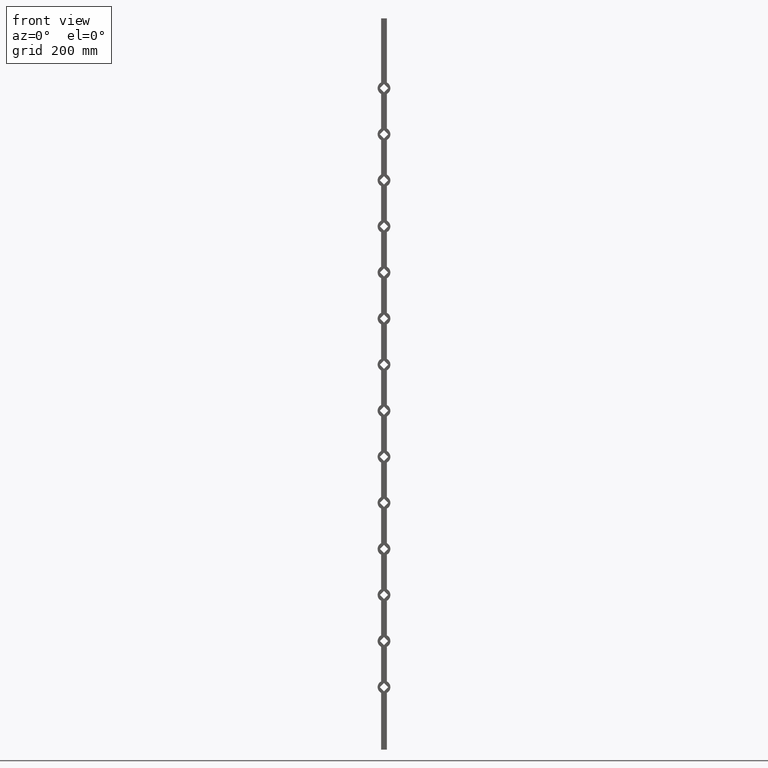
[diagram: clean part render]
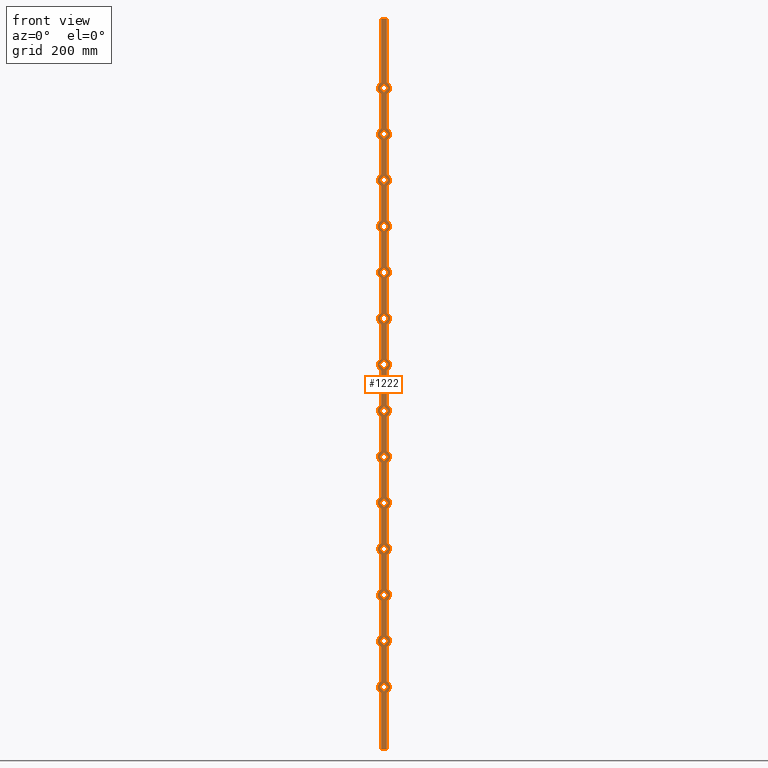
[diagram: same view with one face highlighted and labeled with its STEP entity id]
A machine part, front view. The second image highlights one B-rep face of the part: STEP entity #1222.
In plain terms, the highlighted planar face has unit normal (0, 1, 0).
Its self-contained STEP definition (entity closure, byte-faithful):
#13 = CARTESIAN_POINT ( 'NONE',  ( 11.31370849898475406, -8.000000000000000000, -703.0000000000001137 ) ) ;
#15 = ORIENTED_EDGE ( 'NONE', *, *, #8897, .F. ) ;
#20 = LINE ( 'NONE', #11042, #3275 ) ;
#28 = LINE ( 'NONE', #9667, #5341 ) ;
#30 = CARTESIAN_POINT ( 'NONE',  ( -8.000000000000000000, -8.000000000000000000, 1000.000000000000000 ) ) ;
#32 = CARTESIAN_POINT ( 'NONE',  ( -8.000000000000000000, -8.000000000000000000, -183.4356175837266676 ) ) ;
#36 = CARTESIAN_POINT ( 'NONE',  ( 8.000000000000000000, -8.000000000000000000, 1000.000000000000000 ) ) ;
#61 = DIRECTION ( 'NONE',  ( -0.000000000000000000, -0.000000000000000000, -1.000000000000000000 ) ) ;
#75 = VERTEX_POINT ( 'NONE', #12606 ) ;
#76 = CARTESIAN_POINT ( 'NONE',  ( 1.124574612246848563E-13, -8.000000000000000000, -313.6862915010150346 ) ) ;
#78 = CARTESIAN_POINT ( 'NONE',  ( -7.999999999999960032, -8.000000000000000000, 698.5643824162733608 ) ) ;
#92 = FACE_BOUND ( 'NONE', #8904, .T. ) ;
#94 = CIRCLE ( 'NONE', #10407, 17.50000000000001421 ) ;
#102 = LINE ( 'NONE', #13, #10920 ) ;
#111 = CARTESIAN_POINT ( 'NONE',  ( -7.999999999999960032, -8.000000000000000000, -813.4356175837265255 ) ) ;
#186 = CARTESIAN_POINT ( 'NONE',  ( 8.000000000000000000, -8.000000000000000000, 446.5643824162733040 ) ) ;
#197 = VECTOR ( 'NONE', #3915, 1000.000000000000000 ) ;
#209 = CARTESIAN_POINT ( 'NONE',  ( -8.000000000000000000, -8.000000000000000000, 415.4356175837265255 ) ) ;
#218 = DIRECTION ( 'NONE',  ( 0.000000000000000000, 0.000000000000000000, 1.000000000000000000 ) ) ;
#226 = LINE ( 'NONE', #1295, #2275 ) ;
#231 = LINE ( 'NONE', #10172, #4000 ) ;
#243 = LINE ( 'NONE', #12074, #4366 ) ;
#245 = EDGE_CURVE ( 'NONE', #10849, #9266, #4233, .T. ) ;
#252 = VERTEX_POINT ( 'NONE', #11016 ) ;
#263 = FACE_BOUND ( 'NONE', #14180, .T. ) ;
#266 = CARTESIAN_POINT ( 'NONE',  ( 8.000000000000000000, -8.000000000000000000, 1000.000000000000000 ) ) ;
#316 = VECTOR ( 'NONE', #13889, 1000.000000000000000 ) ;
#318 = VERTEX_POINT ( 'NONE', #8697 ) ;
#323 = CARTESIAN_POINT ( 'NONE',  ( 8.000000000000000000, -8.000000000000000000, 1000.000000000000000 ) ) ;
#332 = VERTEX_POINT ( 'NONE', #12053 ) ;
#353 = CIRCLE ( 'NONE', #13438, 17.50000000000001421 ) ;
#359 = DIRECTION ( 'NONE',  ( -0.000000000000000000, -0.000000000000000000, -1.000000000000000000 ) ) ;
#387 = LINE ( 'NONE', #7797, #11706 ) ;
#402 = CARTESIAN_POINT ( 'NONE',  ( 1.124574612246848563E-13, -8.000000000000000000, 545.6862915010150346 ) ) ;
#431 = FACE_BOUND ( 'NONE', #3463, .T. ) ;
#447 = CIRCLE ( 'NONE', #6473, 17.49999999999996092 ) ;
#464 = EDGE_CURVE ( 'NONE', #12711, #9777, #1128, .T. ) ;
#516 = EDGE_LOOP ( 'NONE', ( #5378, #9468, #900, #1482 ) ) ;
#530 = CIRCLE ( 'NONE', #10386, 17.49999999999996092 ) ;
#535 = CARTESIAN_POINT ( 'NONE',  ( 0.000000000000000000, -8.000000000000000000, 304.9999999999999432 ) ) ;
#576 = VERTEX_POINT ( 'NONE', #5732 ) ;
#589 = EDGE_CURVE ( 'NONE', #7779, #11117, #102, .T. ) ;
#606 = ORIENTED_EDGE ( 'NONE', *, *, #5252, .F. ) ;
#611 = LINE ( 'NONE', #10032, #3004 ) ;
#626 = EDGE_CURVE ( 'NONE', #4599, #7678, #5246, .T. ) ;
#647 = ORIENTED_EDGE ( 'NONE', *, *, #464, .T. ) ;
#650 = DIRECTION ( 'NONE',  ( 0.000000000000000000, 1.000000000000000000, 0.000000000000000000 ) ) ;
#659 = VECTOR ( 'NONE', #2306, 1000.000000000000000 ) ;
#663 = EDGE_CURVE ( 'NONE', #4701, #9791, #1979, .T. ) ;
#702 = EDGE_CURVE ( 'NONE', #11053, #6277, #447, .T. ) ;
#707 = LINE ( 'NONE', #4610, #11523 ) ;
#715 = ORIENTED_EDGE ( 'NONE', *, *, #2684, .T. ) ;
#716 = CARTESIAN_POINT ( 'NONE',  ( 1.124574612246848563E-13, -8.000000000000000000, 41.68629150101499192 ) ) ;
#723 = CARTESIAN_POINT ( 'NONE',  ( 1.124574612246848563E-13, -8.000000000000000000, 190.3137084989848802 ) ) ;
#727 = DIRECTION ( 'NONE',  ( -0.7071067811865450192, -0.000000000000000000, 0.7071067811865500152 ) ) ;
#746 = CIRCLE ( 'NONE', #4199, 17.50000000000001421 ) ;
#769 = VECTOR ( 'NONE', #8534, 1000.000000000000000 ) ;
#770 = ORIENTED_EDGE ( 'NONE', *, *, #1193, .T. ) ;
#773 = LINE ( 'NONE', #7754, #10584 ) ;
#786 = EDGE_CURVE ( 'NONE', #12048, #576, #1822, .T. ) ;
#789 = AXIS2_PLACEMENT_3D ( 'NONE', #7365, #8431, #801 ) ;
#801 = DIRECTION ( 'NONE',  ( 0.000000000000000000, -0.000000000000000000, 1.000000000000000000 ) ) ;
#833 = ORIENTED_EDGE ( 'NONE', *, *, #6901, .F. ) ;
#846 = EDGE_CURVE ( 'NONE', #9791, #1005, #13464, .T. ) ;
#851 = DIRECTION ( 'NONE',  ( -0.7071067811865381358, -0.000000000000000000, -0.7071067811865570096 ) ) ;
#864 = CARTESIAN_POINT ( 'NONE',  ( 0.000000000000000000, -8.000000000000000000, 52.99999999999993605 ) ) ;
#872 = AXIS2_PLACEMENT_3D ( 'NONE', #13310, #7814, #9024 ) ;
#900 = ORIENTED_EDGE ( 'NONE', *, *, #13009, .T. ) ;
#913 = CARTESIAN_POINT ( 'NONE',  ( 11.31370849898472031, -8.000000000000000000, -72.99999999999995737 ) ) ;
#915 = VERTEX_POINT ( 'NONE', #3163 ) ;
#921 = ORIENTED_EDGE ( 'NONE', *, *, #14129, .T. ) ;
#936 = EDGE_CURVE ( 'NONE', #11117, #4807, #12276, .T. ) ;
#941 = CARTESIAN_POINT ( 'NONE',  ( 8.000000000000000000, -8.000000000000000000, 1000.000000000000000 ) ) ;
#946 = FACE_BOUND ( 'NONE', #4276, .T. ) ;
#959 = VERTEX_POINT ( 'NONE', #14159 ) ;
#961 = VERTEX_POINT ( 'NONE', #3069 ) ;
#1005 = VERTEX_POINT ( 'NONE', #11835 ) ;
#1006 = DIRECTION ( 'NONE',  ( -0.7071067811865450192, -0.000000000000000000, 0.7071067811865500152 ) ) ;
#1014 = AXIS2_PLACEMENT_3D ( 'NONE', #10375, #11456, #8386 ) ;
#1026 = CARTESIAN_POINT ( 'NONE',  ( -11.31370849898475051, -8.000000000000000000, -324.9999999999999432 ) ) ;
#1037 = DIRECTION ( 'NONE',  ( 0.000000000000000000, 0.000000000000000000, 1.000000000000000000 ) ) ;
#1071 = CARTESIAN_POINT ( 'NONE',  ( 11.31370849898472031, -8.000000000000000000, -703.0000000000001137 ) ) ;
#1114 = DIRECTION ( 'NONE',  ( -0.000000000000000000, -0.000000000000000000, -1.000000000000000000 ) ) ;
#1115 = FACE_BOUND ( 'NONE', #6320, .T. ) ;
#1126 = EDGE_CURVE ( 'NONE', #4111, #3428, #611, .T. ) ;
#1128 = LINE ( 'NONE', #6237, #7306 ) ;
#1132 = VECTOR ( 'NONE', #8112, 1000.000000000000000 ) ;
#1133 = CARTESIAN_POINT ( 'NONE',  ( 1.124574612246848563E-13, -8.000000000000000000, -462.3137084989850223 ) ) ;
#1147 = CARTESIAN_POINT ( 'NONE',  ( -8.000000000000000000, -8.000000000000000000, -718.5643824162734745 ) ) ;
#1152 = CARTESIAN_POINT ( 'NONE',  ( -8.000000000000000000, -8.000000000000000000, -466.5643824162734745 ) ) ;
#1156 = CIRCLE ( 'NONE', #8807, 17.49999999999996092 ) ;
#1157 = VERTEX_POINT ( 'NONE', #3975 ) ;
#1176 = LINE ( 'NONE', #8490, #12148 ) ;
#1193 = EDGE_CURVE ( 'NONE', #915, #12521, #9018, .T. ) ;
#1222 = ADVANCED_FACE ( 'NONE', ( #3338, #431, #8494, #1115, #946, #7291, #263, #6603, #3687, #92, #5234, #11747, #8152, #11589, #8667 ), #6228, .F. ) ;
#1239 = VECTOR ( 'NONE', #13785, 1000.000000000000000 ) ;
#1246 = VECTOR ( 'NONE', #7740, 1000.000000000000000 ) ;
#1258 = EDGE_CURVE ( 'NONE', #576, #12535, #4724, .T. ) ;
#1267 = CARTESIAN_POINT ( 'NONE',  ( 1.124574612246848563E-13, -8.000000000000000000, 64.31370849898488018 ) ) ;
#1290 = LINE ( 'NONE', #1133, #1456 ) ;
#1291 = DIRECTION ( 'NONE',  ( 0.000000000000000000, 0.000000000000000000, 1.000000000000000000 ) ) ;
#1295 = CARTESIAN_POINT ( 'NONE',  ( -11.31370849898475051, -8.000000000000000000, 178.9999999999999432 ) ) ;
#1307 = VECTOR ( 'NONE', #2551, 1000.000000000000000 ) ;
#1324 = EDGE_CURVE ( 'NONE', #11837, #6674, #10738, .T. ) ;
#1332 = CARTESIAN_POINT ( 'NONE',  ( 0.000000000000000000, -8.000000000000000000, 178.9999999999999432 ) ) ;
#1374 = DIRECTION ( 'NONE',  ( 0.000000000000000000, 0.000000000000000000, 1.000000000000000000 ) ) ;
#1383 = ORIENTED_EDGE ( 'NONE', *, *, #3022, .T. ) ;
#1390 = EDGE_CURVE ( 'NONE', #8456, #4083, #4204, .T. ) ;
#1400 = ORIENTED_EDGE ( 'NONE', *, *, #1701, .T. ) ;
#1415 = LINE ( 'NONE', #266, #5709 ) ;
#1427 = CARTESIAN_POINT ( 'NONE',  ( 8.000000000000000000, -8.000000000000000000, 824.5643824162733608 ) ) ;
#1455 = ORIENTED_EDGE ( 'NONE', *, *, #5225, .T. ) ;
#1456 = VECTOR ( 'NONE', #4629, 1000.000000000000000 ) ;
#1472 = VERTEX_POINT ( 'NONE', #6817 ) ;
#1482 = ORIENTED_EDGE ( 'NONE', *, *, #5367, .T. ) ;
#1500 = CARTESIAN_POINT ( 'NONE',  ( 8.000000000000000000, -8.000000000000000000, 1000.000000000000000 ) ) ;
#1506 = DIRECTION ( 'NONE',  ( -0.7071067811865381358, -0.000000000000000000, -0.7071067811865570096 ) ) ;
#1527 = VERTEX_POINT ( 'NONE', #12622 ) ;
#1534 = CARTESIAN_POINT ( 'NONE',  ( -11.31370849898475051, -8.000000000000000000, -199.0000000000000568 ) ) ;
#1568 = CARTESIAN_POINT ( 'NONE',  ( -7.999999999999960032, -8.000000000000000000, 824.5643824162733608 ) ) ;
#1585 = LINE ( 'NONE', #4584, #4153 ) ;
#1612 = VERTEX_POINT ( 'NONE', #9871 ) ;
#1616 = DIRECTION ( 'NONE',  ( 0.000000000000000000, 1.000000000000000000, 0.000000000000000000 ) ) ;
#1661 = CARTESIAN_POINT ( 'NONE',  ( -11.31370849898475051, -8.000000000000000000, -324.9999999999999432 ) ) ;
#1701 = EDGE_CURVE ( 'NONE', #2561, #959, #1290, .T. ) ;
#1707 = CARTESIAN_POINT ( 'NONE',  ( -11.31370849898475051, -8.000000000000000000, -73.00000000000007105 ) ) ;
#1721 = ORIENTED_EDGE ( 'NONE', *, *, #2239, .T. ) ;
#1726 = ORIENTED_EDGE ( 'NONE', *, *, #2668, .T. ) ;
#1745 = LINE ( 'NONE', #13517, #8423 ) ;
#1750 = LINE ( 'NONE', #8270, #4325 ) ;
#1773 = CARTESIAN_POINT ( 'NONE',  ( -8.000000000000000000, -8.000000000000000000, 1000.000000000000000 ) ) ;
#1785 = CARTESIAN_POINT ( 'NONE',  ( 11.31370849898475406, -8.000000000000000000, -577.0000000000002274 ) ) ;
#1821 = ORIENTED_EDGE ( 'NONE', *, *, #4517, .T. ) ;
#1822 = LINE ( 'NONE', #6911, #1307 ) ;
#1825 = CARTESIAN_POINT ( 'NONE',  ( 1.124574612246848563E-13, -8.000000000000000000, -588.3137084989850791 ) ) ;
#1854 = CARTESIAN_POINT ( 'NONE',  ( 0.000000000000000000, -8.000000000000000000, -703.0000000000001137 ) ) ;
#1856 = CARTESIAN_POINT ( 'NONE',  ( -11.31370849898475051, -8.000000000000000000, 556.9999999999998863 ) ) ;
#1900 = VECTOR ( 'NONE', #11949, 1000.000000000000000 ) ;
#1913 = ORIENTED_EDGE ( 'NONE', *, *, #2785, .F. ) ;
#1914 = VECTOR ( 'NONE', #13681, 1000.000000000000000 ) ;
#1916 = LINE ( 'NONE', #13238, #14068 ) ;
#1931 = VERTEX_POINT ( 'NONE', #10498 ) ;
#1944 = VECTOR ( 'NONE', #5516, 1000.000000000000000 ) ;
#1960 = CARTESIAN_POINT ( 'NONE',  ( 11.31370849898472031, -8.000000000000000000, -324.9999999999998295 ) ) ;
#1979 = LINE ( 'NONE', #6580, #4558 ) ;
#1980 = DIRECTION ( 'NONE',  ( -0.7071067811865381358, -0.000000000000000000, -0.7071067811865570096 ) ) ;
#1997 = CARTESIAN_POINT ( 'NONE',  ( 11.31370849898475406, -8.000000000000000000, 682.9999999999998863 ) ) ;
#2031 = EDGE_CURVE ( 'NONE', #318, #3883, #8114, .T. ) ;
#2053 = CARTESIAN_POINT ( 'NONE',  ( 1.124574612246848563E-13, -8.000000000000000000, -714.3137084989849654 ) ) ;
#2075 = VERTEX_POINT ( 'NONE', #8610 ) ;
#2100 = CARTESIAN_POINT ( 'NONE',  ( 1.124574612246848563E-13, -8.000000000000000000, 41.68629150101499192 ) ) ;
#2104 = ORIENTED_EDGE ( 'NONE', *, *, #2398, .T. ) ;
#2136 = LINE ( 'NONE', #12388, #6088 ) ;
#2163 = CARTESIAN_POINT ( 'NONE',  ( -11.31370849898475051, -8.000000000000000000, 556.9999999999998863 ) ) ;
#2164 = VECTOR ( 'NONE', #9894, 1000.000000000000000 ) ;
#2175 = AXIS2_PLACEMENT_3D ( 'NONE', #3868, #8563, #4933 ) ;
#2177 = DIRECTION ( 'NONE',  ( 0.000000000000000000, 1.000000000000000000, 0.000000000000000000 ) ) ;
#2183 = CARTESIAN_POINT ( 'NONE',  ( 11.31370849898472031, -8.000000000000000000, -450.9999999999998295 ) ) ;
#2212 = DIRECTION ( 'NONE',  ( 0.7071067811865381358, -0.000000000000000000, -0.7071067811865570096 ) ) ;
#2239 = EDGE_CURVE ( 'NONE', #11950, #10682, #226, .T. ) ;
#2240 = CIRCLE ( 'NONE', #3842, 17.49999999999996092 ) ;
#2251 = LINE ( 'NONE', #4349, #2790 ) ;
#2252 = ORIENTED_EDGE ( 'NONE', *, *, #11677, .T. ) ;
#2275 = VECTOR ( 'NONE', #11072, 1000.000000000000000 ) ;
#2278 = DIRECTION ( 'NONE',  ( 0.7071067811865450192, -0.000000000000000000, 0.7071067811865500152 ) ) ;
#2292 = DIRECTION ( 'NONE',  ( 0.000000000000000000, 1.000000000000000000, 0.000000000000000000 ) ) ;
#2293 = DIRECTION ( 'NONE',  ( 0.7071067811865450192, -0.000000000000000000, 0.7071067811865500152 ) ) ;
#2306 = DIRECTION ( 'NONE',  ( -0.000000000000000000, -0.000000000000000000, -1.000000000000000000 ) ) ;
#2316 = CARTESIAN_POINT ( 'NONE',  ( -8.000000000000000000, -8.000000000000000000, 1000.000000000000000 ) ) ;
#2329 = EDGE_CURVE ( 'NONE', #12170, #961, #387, .T. ) ;
#2335 = LINE ( 'NONE', #2163, #2164 ) ;
#2364 = DIRECTION ( 'NONE',  ( -0.000000000000000000, -0.000000000000000000, -1.000000000000000000 ) ) ;
#2398 = EDGE_CURVE ( 'NONE', #9081, #7779, #5354, .T. ) ;
#2411 = DIRECTION ( 'NONE',  ( -0.000000000000000000, -0.000000000000000000, -1.000000000000000000 ) ) ;
#2461 = EDGE_CURVE ( 'NONE', #4599, #7061, #9823, .T. ) ;
#2469 = CIRCLE ( 'NONE', #7937, 17.49999999999996092 ) ;
#2477 = CARTESIAN_POINT ( 'NONE',  ( -11.31370849898475051, -8.000000000000000000, -577.0000000000002274 ) ) ;
#2485 = CARTESIAN_POINT ( 'NONE',  ( 8.000000000000000000, -8.000000000000000000, 1000.000000000000000 ) ) ;
#2514 = LINE ( 'NONE', #7473, #3700 ) ;
#2551 = DIRECTION ( 'NONE',  ( 0.7071067811865381358, -0.000000000000000000, -0.7071067811865570096 ) ) ;
#2561 = VERTEX_POINT ( 'NONE', #2183 ) ;
#2572 = CARTESIAN_POINT ( 'NONE',  ( 8.000000000000000000, -8.000000000000000000, 1000.000000000000000 ) ) ;
#2588 = DIRECTION ( 'NONE',  ( -0.000000000000000000, -0.000000000000000000, -1.000000000000000000 ) ) ;
#2589 = DIRECTION ( 'NONE',  ( -0.7071067811865450192, -0.000000000000000000, 0.7071067811865500152 ) ) ;
#2605 = ORIENTED_EDGE ( 'NONE', *, *, #12152, .T. ) ;
#2610 = VERTEX_POINT ( 'NONE', #6829 ) ;
#2615 = CARTESIAN_POINT ( 'NONE',  ( 11.31370849898475406, -8.000000000000000000, 556.9999999999998863 ) ) ;
#2623 = CARTESIAN_POINT ( 'NONE',  ( -8.000000000000000000, -8.000000000000000000, -340.5643824162733608 ) ) ;
#2631 = EDGE_CURVE ( 'NONE', #1472, #11053, #1415, .T. ) ;
#2668 = EDGE_CURVE ( 'NONE', #6674, #332, #7750, .T. ) ;
#2677 = CARTESIAN_POINT ( 'NONE',  ( -11.31370849898475051, -8.000000000000000000, -829.0000000000000000 ) ) ;
#2684 = EDGE_CURVE ( 'NONE', #332, #8444, #13044, .T. ) ;
#2692 = VERTEX_POINT ( 'NONE', #1568 ) ;
#2717 = LINE ( 'NONE', #1500, #12324 ) ;
#2723 = DIRECTION ( 'NONE',  ( 0.000000000000000000, 1.000000000000000000, 0.000000000000000000 ) ) ;
#2764 = VERTEX_POINT ( 'NONE', #10246 ) ;
#2770 = CARTESIAN_POINT ( 'NONE',  ( 1.124574612246848563E-13, -8.000000000000000000, 694.3137084989848518 ) ) ;
#2777 = DIRECTION ( 'NONE',  ( 0.7071067811865381358, -0.000000000000000000, -0.7071067811865570096 ) ) ;
#2785 = EDGE_CURVE ( 'NONE', #12168, #5618, #6712, .T. ) ;
#2790 = VECTOR ( 'NONE', #13038, 1000.000000000000000 ) ;
#2819 = EDGE_CURVE ( 'NONE', #1612, #7061, #3448, .T. ) ;
#2835 = VERTEX_POINT ( 'NONE', #1427 ) ;
#2843 = EDGE_CURVE ( 'NONE', #10876, #12105, #6025, .T. ) ;
#2880 = VERTEX_POINT ( 'NONE', #7134 ) ;
#2903 = EDGE_CURVE ( 'NONE', #10219, #2561, #11696, .T. ) ;
#2968 = CARTESIAN_POINT ( 'NONE',  ( 8.000000000000000000, -8.000000000000000000, -466.5643824162734745 ) ) ;
#2980 = ORIENTED_EDGE ( 'NONE', *, *, #663, .T. ) ;
#2983 = EDGE_CURVE ( 'NONE', #5888, #9059, #13914, .T. ) ;
#3001 = VERTEX_POINT ( 'NONE', #5034 ) ;
#3004 = VECTOR ( 'NONE', #2589, 1000.000000000000000 ) ;
#3022 = EDGE_CURVE ( 'NONE', #13771, #11431, #28, .T. ) ;
#3059 = DIRECTION ( 'NONE',  ( 0.7071067811865381358, -0.000000000000000000, -0.7071067811865570096 ) ) ;
#3069 = CARTESIAN_POINT ( 'NONE',  ( -8.000000000000000000, -8.000000000000000000, -1000.000000000000000 ) ) ;
#3085 = VECTOR ( 'NONE', #8699, 1000.000000000000000 ) ;
#3134 = ORIENTED_EDGE ( 'NONE', *, *, #10010, .F. ) ;
#3144 = LINE ( 'NONE', #1661, #9678 ) ;
#3156 = LINE ( 'NONE', #9746, #11566 ) ;
#3163 = CARTESIAN_POINT ( 'NONE',  ( 11.31370849898472031, -8.000000000000000000, -577.0000000000002274 ) ) ;
#3196 = CARTESIAN_POINT ( 'NONE',  ( 8.000000000000000000, -8.000000000000000000, 1000.000000000000000 ) ) ;
#3238 = CARTESIAN_POINT ( 'NONE',  ( 1.124574612246848563E-13, -8.000000000000000000, -210.3137084989850223 ) ) ;
#3241 = CARTESIAN_POINT ( 'NONE',  ( 0.000000000000000000, -8.000000000000000000, 178.9999999999999432 ) ) ;
#3245 = LINE ( 'NONE', #3424, #3418 ) ;
#3250 = ORIENTED_EDGE ( 'NONE', *, *, #7780, .T. ) ;
#3275 = VECTOR ( 'NONE', #61, 1000.000000000000000 ) ;
#3277 = CARTESIAN_POINT ( 'NONE',  ( -8.000000000000000000, -8.000000000000000000, 1000.000000000000000 ) ) ;
#3330 = DIRECTION ( 'NONE',  ( -0.7071067811865381358, -0.000000000000000000, -0.7071067811865570096 ) ) ;
#3338 = FACE_BOUND ( 'NONE', #3925, .T. ) ;
#3356 = CARTESIAN_POINT ( 'NONE',  ( 1.124574612246848563E-13, -8.000000000000000000, 797.6862915010150346 ) ) ;
#3381 = EDGE_LOOP ( 'NONE', ( #6577, #6299, #8266, #770 ) ) ;
#3383 = AXIS2_PLACEMENT_3D ( 'NONE', #13248, #11067, #13192 ) ;
#3395 = ORIENTED_EDGE ( 'NONE', *, *, #8061, .F. ) ;
#3401 = ORIENTED_EDGE ( 'NONE', *, *, #4086, .T. ) ;
#3410 = CARTESIAN_POINT ( 'NONE',  ( 7.999999999999960032, -8.000000000000000000, 541.4356175837265255 ) ) ;
#3416 = VERTEX_POINT ( 'NONE', #11492 ) ;
#3418 = VECTOR ( 'NONE', #11160, 1000.000000000000000 ) ;
#3421 = ORIENTED_EDGE ( 'NONE', *, *, #12450, .F. ) ;
#3424 = CARTESIAN_POINT ( 'NONE',  ( -8.000000000000000000, -8.000000000000000000, 1000.000000000000000 ) ) ;
#3427 = EDGE_CURVE ( 'NONE', #13729, #5284, #8419, .T. ) ;
#3428 = VERTEX_POINT ( 'NONE', #1534 ) ;
#3448 = LINE ( 'NONE', #6152, #3794 ) ;
#3459 = CARTESIAN_POINT ( 'NONE',  ( 1.124574612246848563E-13, -8.000000000000000000, 167.6862915010150061 ) ) ;
#3463 = EDGE_LOOP ( 'NONE', ( #3250, #9469, #6396, #7378 ) ) ;
#3516 = CARTESIAN_POINT ( 'NONE',  ( 11.31370849898472031, -8.000000000000000000, 557.0000000000000000 ) ) ;
#3553 = EDGE_CURVE ( 'NONE', #9804, #5526, #2240, .T. ) ;
#3559 = CIRCLE ( 'NONE', #12220, 17.50000000000001421 ) ;
#3575 = DIRECTION ( 'NONE',  ( -0.000000000000000000, -0.000000000000000000, -1.000000000000000000 ) ) ;
#3607 = VECTOR ( 'NONE', #5423, 1000.000000000000000 ) ;
#3636 = ORIENTED_EDGE ( 'NONE', *, *, #1258, .T. ) ;
#3651 = VERTEX_POINT ( 'NONE', #36 ) ;
#3668 = AXIS2_PLACEMENT_3D ( 'NONE', #535, #9257, #3931 ) ;
#3684 = ORIENTED_EDGE ( 'NONE', *, *, #8168, .T. ) ;
#3687 = FACE_BOUND ( 'NONE', #12272, .T. ) ;
#3697 = DIRECTION ( 'NONE',  ( -0.7071067811865381358, -0.000000000000000000, -0.7071067811865570096 ) ) ;
#3700 = VECTOR ( 'NONE', #3995, 1000.000000000000000 ) ;
#3701 = DIRECTION ( 'NONE',  ( 0.000000000000000000, 0.000000000000000000, 1.000000000000000000 ) ) ;
#3706 = CARTESIAN_POINT ( 'NONE',  ( 0.000000000000000000, -8.000000000000000000, 556.9999999999998863 ) ) ;
#3733 = ORIENTED_EDGE ( 'NONE', *, *, #245, .T. ) ;
#3745 = EDGE_CURVE ( 'NONE', #12313, #2075, #11183, .T. ) ;
#3752 = CARTESIAN_POINT ( 'NONE',  ( 1.124574612246848563E-13, -8.000000000000000000, 316.3137084989848518 ) ) ;
#3794 = VECTOR ( 'NONE', #9373, 1000.000000000000000 ) ;
#3813 = EDGE_CURVE ( 'NONE', #9777, #3001, #1585, .T. ) ;
#3822 = DIRECTION ( 'NONE',  ( 0.000000000000000000, 1.000000000000000000, 0.000000000000000000 ) ) ;
#3842 = AXIS2_PLACEMENT_3D ( 'NONE', #1854, #9486, #10697 ) ;
#3866 = ORIENTED_EDGE ( 'NONE', *, *, #8352, .T. ) ;
#3868 = CARTESIAN_POINT ( 'NONE',  ( 0.000000000000000000, -8.000000000000000000, 430.9999999999999432 ) ) ;
#3872 = DIRECTION ( 'NONE',  ( 0.000000000000000000, 0.000000000000000000, 1.000000000000000000 ) ) ;
#3883 = VERTEX_POINT ( 'NONE', #2770 ) ;
#3886 = CARTESIAN_POINT ( 'NONE',  ( 11.31370849898461017, -8.000000000000000000, -828.9999999999998863 ) ) ;
#3915 = DIRECTION ( 'NONE',  ( 0.7071067811865450192, -0.000000000000000000, 0.7071067811865500152 ) ) ;
#3925 = EDGE_LOOP ( 'NONE', ( #921, #7563, #8040, #3401 ) ) ;
#3931 = DIRECTION ( 'NONE',  ( 0.000000000000000000, 0.000000000000000000, 1.000000000000000000 ) ) ;
#3938 = AXIS2_PLACEMENT_3D ( 'NONE', #9782, #7175, #4166 ) ;
#3947 = CARTESIAN_POINT ( 'NONE',  ( -11.31370849898475051, -8.000000000000000000, 808.9999999999998863 ) ) ;
#3949 = CARTESIAN_POINT ( 'NONE',  ( 8.000000000000000000, -8.000000000000000000, 194.5643824162733324 ) ) ;
#3975 = CARTESIAN_POINT ( 'NONE',  ( -8.000000000000000000, -8.000000000000000000, -592.5643824162735882 ) ) ;
#3977 = VERTEX_POINT ( 'NONE', #8508 ) ;
#3995 = DIRECTION ( 'NONE',  ( -0.000000000000000000, -0.000000000000000000, -1.000000000000000000 ) ) ;
#4000 = VECTOR ( 'NONE', #11261, 1000.000000000000000 ) ;
#4013 = EDGE_LOOP ( 'NONE', ( #4435, #9509, #10833, #9070, #11966, #12979, #4853, #5325, #9973, #3421, #11661, #15, #11236, #3134, #606, #7978, #11449, #4982, #7220, #8882, #6069, #9446, #1913, #12664, #833, #13370, #6713, #13563, #4465, #11128, #10858, #13867, #7398, #6661, #3866, #3395, #12195, #4123, #1821, #7903, #5968, #8703, #6944, #10257, #2252, #8410, #3733, #12693, #7159, #4769, #8641, #13786, #3684, #10809, #11178, #4449, #13692, #7335, #1455, #4265 ) ) ;
#4031 = VERTEX_POINT ( 'NONE', #11625 ) ;
#4083 = VERTEX_POINT ( 'NONE', #78 ) ;
#4086 = EDGE_CURVE ( 'NONE', #11314, #5800, #1916, .T. ) ;
#4111 = VERTEX_POINT ( 'NONE', #3238 ) ;
#4123 = ORIENTED_EDGE ( 'NONE', *, *, #1390, .F. ) ;
#4134 = ORIENTED_EDGE ( 'NONE', *, *, #9858, .T. ) ;
#4136 = LINE ( 'NONE', #14175, #10322 ) ;
#4151 = CARTESIAN_POINT ( 'NONE',  ( -8.000000000000000000, -8.000000000000000000, 163.4356175837265539 ) ) ;
#4153 = VECTOR ( 'NONE', #5878, 1000.000000000000000 ) ;
#4160 = EDGE_CURVE ( 'NONE', #9059, #10715, #1745, .T. ) ;
#4166 = DIRECTION ( 'NONE',  ( 0.000000000000000000, 0.000000000000000000, 1.000000000000000000 ) ) ;
#4183 = EDGE_CURVE ( 'NONE', #12170, #11895, #13200, .T. ) ;
#4199 = AXIS2_PLACEMENT_3D ( 'NONE', #7468, #7147, #11840 ) ;
#4204 = CIRCLE ( 'NONE', #12287, 17.49999999999996092 ) ;
#4216 = EDGE_LOOP ( 'NONE', ( #12389, #9031, #1726, #715 ) ) ;
#4227 = EDGE_CURVE ( 'NONE', #3977, #11950, #12194, .T. ) ;
#4232 = CARTESIAN_POINT ( 'NONE',  ( 11.31370849898474873, -8.000000000000000000, 808.9999999999998863 ) ) ;
#4233 = LINE ( 'NONE', #30, #7143 ) ;
#4241 = EDGE_CURVE ( 'NONE', #7704, #7071, #530, .T. ) ;
#4264 = LINE ( 'NONE', #5266, #9755 ) ;
#4265 = ORIENTED_EDGE ( 'NONE', *, *, #3553, .F. ) ;
#4276 = EDGE_LOOP ( 'NONE', ( #1721, #7093, #13892, #5679 ) ) ;
#4325 = VECTOR ( 'NONE', #9323, 1000.000000000000000 ) ;
#4343 = DIRECTION ( 'NONE',  ( 0.000000000000000000, 1.000000000000000000, 0.000000000000000000 ) ) ;
#4349 = CARTESIAN_POINT ( 'NONE',  ( 11.31370849898475406, -8.000000000000000000, 808.9999999999998863 ) ) ;
#4366 = VECTOR ( 'NONE', #1006, 1000.000000000000000 ) ;
#4371 = CARTESIAN_POINT ( 'NONE',  ( -11.31370849898475051, -8.000000000000000000, -451.0000000000000568 ) ) ;
#4401 = CARTESIAN_POINT ( 'NONE',  ( 1.124574612246848563E-13, -8.000000000000000000, 797.6862915010150346 ) ) ;
#4405 = DIRECTION ( 'NONE',  ( 0.000000000000000000, 1.000000000000000000, 0.000000000000000000 ) ) ;
#4409 = VERTEX_POINT ( 'NONE', #11995 ) ;
#4412 = VECTOR ( 'NONE', #8555, 1000.000000000000000 ) ;
#4432 = DIRECTION ( 'NONE',  ( 0.000000000000000000, 0.000000000000000000, 1.000000000000000000 ) ) ;
#4435 = ORIENTED_EDGE ( 'NONE', *, *, #7712, .T. ) ;
#4444 = DIRECTION ( 'NONE',  ( -0.7071067811865381358, -0.000000000000000000, -0.7071067811865570096 ) ) ;
#4449 = ORIENTED_EDGE ( 'NONE', *, *, #9447, .F. ) ;
#4452 = EDGE_CURVE ( 'NONE', #11975, #6046, #7728, .T. ) ;
#4465 = ORIENTED_EDGE ( 'NONE', *, *, #5949, .F. ) ;
#4475 = LINE ( 'NONE', #10977, #7206 ) ;
#4504 = EDGE_CURVE ( 'NONE', #3651, #2835, #4136, .T. ) ;
#4517 = EDGE_CURVE ( 'NONE', #8456, #8232, #10153, .T. ) ;
#4542 = CARTESIAN_POINT ( 'NONE',  ( 11.31370849898475406, -8.000000000000000000, 430.9999999999999432 ) ) ;
#4558 = VECTOR ( 'NONE', #7572, 1000.000000000000000 ) ;
#4584 = CARTESIAN_POINT ( 'NONE',  ( 1.124574612246848563E-13, -8.000000000000000000, -84.31370849898500808 ) ) ;
#4599 = VERTEX_POINT ( 'NONE', #209 ) ;
#4609 = ORIENTED_EDGE ( 'NONE', *, *, #9301, .T. ) ;
#4610 = CARTESIAN_POINT ( 'NONE',  ( 1.124574612246848563E-13, -8.000000000000000000, 568.3137084989848518 ) ) ;
#4611 = DIRECTION ( 'NONE',  ( -0.000000000000000000, -0.000000000000000000, -1.000000000000000000 ) ) ;
#4622 = VECTOR ( 'NONE', #6309, 1000.000000000000000 ) ;
#4629 = DIRECTION ( 'NONE',  ( -0.7071067811865381358, -0.000000000000000000, -0.7071067811865570096 ) ) ;
#4659 = VECTOR ( 'NONE', #2364, 1000.000000000000000 ) ;
#4677 = CARTESIAN_POINT ( 'NONE',  ( 0.000000000000000000, -8.000000000000000000, -829.0000000000000000 ) ) ;
#4691 = CIRCLE ( 'NONE', #6395, 17.50000000000001421 ) ;
#4700 = VERTEX_POINT ( 'NONE', #12473 ) ;
#4701 = VERTEX_POINT ( 'NONE', #13229 ) ;
#4724 = LINE ( 'NONE', #2100, #10221 ) ;
#4748 = CARTESIAN_POINT ( 'NONE',  ( 11.31370849898475406, -8.000000000000000000, 178.9999999999999432 ) ) ;
#4752 = CIRCLE ( 'NONE', #7075, 17.50000000000001421 ) ;
#4769 = ORIENTED_EDGE ( 'NONE', *, *, #5103, .F. ) ;
#4807 = VERTEX_POINT ( 'NONE', #7772 ) ;
#4839 = EDGE_CURVE ( 'NONE', #6046, #14181, #6014, .T. ) ;
#4852 = CARTESIAN_POINT ( 'NONE',  ( -8.000000000000000000, -8.000000000000000000, 1000.000000000000000 ) ) ;
#4853 = ORIENTED_EDGE ( 'NONE', *, *, #6832, .F. ) ;
#4866 = VERTEX_POINT ( 'NONE', #7237 ) ;
#4874 = LINE ( 'NONE', #14077, #1944 ) ;
#4879 = CARTESIAN_POINT ( 'NONE',  ( 1.124574612246848563E-13, -8.000000000000000000, 419.6862915010149777 ) ) ;
#4891 = CARTESIAN_POINT ( 'NONE',  ( -8.000000000000000000, -8.000000000000000000, 667.4356175837265255 ) ) ;
#4917 = CARTESIAN_POINT ( 'NONE',  ( 8.000000000000000000, -8.000000000000000000, 68.56438241627333241 ) ) ;
#4923 = CARTESIAN_POINT ( 'NONE',  ( 8.000000000000000000, -8.000000000000000000, -1000.000000000000000 ) ) ;
#4929 = CARTESIAN_POINT ( 'NONE',  ( 0.000000000000000000, -8.000000000000000000, -829.0000000000000000 ) ) ;
#4933 = DIRECTION ( 'NONE',  ( 0.000000000000000000, 0.000000000000000000, 1.000000000000000000 ) ) ;
#4973 = DIRECTION ( 'NONE',  ( -0.7071067811865450192, -0.000000000000000000, 0.7071067811865500152 ) ) ;
#4982 = ORIENTED_EDGE ( 'NONE', *, *, #8320, .F. ) ;
#4990 = VECTOR ( 'NONE', #1506, 1000.000000000000000 ) ;
#5034 = CARTESIAN_POINT ( 'NONE',  ( 1.124574612246848563E-13, -8.000000000000000000, -84.31370849898500808 ) ) ;
#5058 = CIRCLE ( 'NONE', #10085, 17.50000000000001421 ) ;
#5065 = CARTESIAN_POINT ( 'NONE',  ( -8.000000000000000000, -8.000000000000000000, -844.5643824162733608 ) ) ;
#5078 = CARTESIAN_POINT ( 'NONE',  ( -8.000000000000000000, -8.000000000000000000, -57.43561758372667470 ) ) ;
#5085 = LINE ( 'NONE', #13679, #10414 ) ;
#5087 = CARTESIAN_POINT ( 'NONE',  ( 11.31370849898475406, -8.000000000000000000, -451.0000000000000568 ) ) ;
#5090 = CARTESIAN_POINT ( 'NONE',  ( 1.124574612246848563E-13, -8.000000000000000000, 293.6862915010149777 ) ) ;
#5103 = EDGE_CURVE ( 'NONE', #9218, #9596, #6502, .T. ) ;
#5127 = CARTESIAN_POINT ( 'NONE',  ( 1.124574612246848563E-13, -8.000000000000000000, -439.6862915010151482 ) ) ;
#5138 = VERTEX_POINT ( 'NONE', #2968 ) ;
#5171 = LINE ( 'NONE', #9025, #6532 ) ;
#5225 = EDGE_CURVE ( 'NONE', #1157, #5526, #9260, .T. ) ;
#5234 = FACE_BOUND ( 'NONE', #3381, .T. ) ;
#5246 = LINE ( 'NONE', #7620, #8000 ) ;
#5252 = EDGE_CURVE ( 'NONE', #7326, #2764, #12174, .T. ) ;
#5266 = CARTESIAN_POINT ( 'NONE',  ( 1.124574612246848563E-13, -8.000000000000000000, -565.6862915010152619 ) ) ;
#5278 = ORIENTED_EDGE ( 'NONE', *, *, #1126, .T. ) ;
#5284 = VERTEX_POINT ( 'NONE', #32 ) ;
#5300 = CARTESIAN_POINT ( 'NONE',  ( 0.000000000000000000, -8.000000000000000000, -324.9999999999999432 ) ) ;
#5323 = ORIENTED_EDGE ( 'NONE', *, *, #589, .T. ) ;
#5325 = ORIENTED_EDGE ( 'NONE', *, *, #702, .F. ) ;
#5341 = VECTOR ( 'NONE', #1980, 1000.000000000000000 ) ;
#5354 = LINE ( 'NONE', #12350, #6730 ) ;
#5367 = EDGE_CURVE ( 'NONE', #9864, #11975, #8234, .T. ) ;
#5370 = CARTESIAN_POINT ( 'NONE',  ( 1.124574612246848563E-13, -8.000000000000000000, -336.3137084989849086 ) ) ;
#5378 = ORIENTED_EDGE ( 'NONE', *, *, #4452, .T. ) ;
#5390 = EDGE_CURVE ( 'NONE', #7868, #1931, #3245, .T. ) ;
#5423 = DIRECTION ( 'NONE',  ( -0.7071067811865450192, -0.000000000000000000, 0.7071067811865500152 ) ) ;
#5428 = DIRECTION ( 'NONE',  ( 0.000000000000000000, 0.000000000000000000, 1.000000000000000000 ) ) ;
#5448 = VECTOR ( 'NONE', #2588, 1000.000000000000000 ) ;
#5460 = VERTEX_POINT ( 'NONE', #4923 ) ;
#5463 = DIRECTION ( 'NONE',  ( 0.7071067811865450192, -0.000000000000000000, 0.7071067811865500152 ) ) ;
#5497 = DIRECTION ( 'NONE',  ( -0.000000000000000000, -0.000000000000000000, -1.000000000000000000 ) ) ;
#5516 = DIRECTION ( 'NONE',  ( -0.7071067811865450192, -0.000000000000000000, 0.7071067811865500152 ) ) ;
#5526 = VERTEX_POINT ( 'NONE', #5876 ) ;
#5534 = VERTEX_POINT ( 'NONE', #2623 ) ;
#5544 = DIRECTION ( 'NONE',  ( -0.000000000000000000, -0.000000000000000000, -1.000000000000000000 ) ) ;
#5552 = VERTEX_POINT ( 'NONE', #1707 ) ;
#5576 = CARTESIAN_POINT ( 'NONE',  ( 8.000000000000000000, -8.000000000000000000, 1000.000000000000000 ) ) ;
#5618 = VERTEX_POINT ( 'NONE', #3949 ) ;
#5679 = ORIENTED_EDGE ( 'NONE', *, *, #4227, .T. ) ;
#5680 = CARTESIAN_POINT ( 'NONE',  ( 8.000000000000000000, -8.000000000000000000, -687.4356175837266392 ) ) ;
#5689 = DIRECTION ( 'NONE',  ( 0.000000000000000000, 0.000000000000000000, 1.000000000000000000 ) ) ;
#5704 = LINE ( 'NONE', #11344, #11341 ) ;
#5709 = VECTOR ( 'NONE', #6690, 1000.000000000000000 ) ;
#5715 = AXIS2_PLACEMENT_3D ( 'NONE', #5820, #7875, #5689 ) ;
#5716 = EDGE_CURVE ( 'NONE', #8389, #13686, #10973, .T. ) ;
#5732 = CARTESIAN_POINT ( 'NONE',  ( 11.31370849898477537, -8.000000000000000000, 52.99999999999987921 ) ) ;
#5757 = DIRECTION ( 'NONE',  ( 0.000000000000000000, 0.000000000000000000, 1.000000000000000000 ) ) ;
#5791 = DIRECTION ( 'NONE',  ( 0.7071067811865450192, -0.000000000000000000, 0.7071067811865500152 ) ) ;
#5800 = VERTEX_POINT ( 'NONE', #13169 ) ;
#5820 = CARTESIAN_POINT ( 'NONE',  ( 0.000000000000000000, -8.000000000000000000, -451.0000000000000568 ) ) ;
#5824 = CARTESIAN_POINT ( 'NONE',  ( 8.000000000000000000, -8.000000000000000000, 1000.000000000000000 ) ) ;
#5863 = VERTEX_POINT ( 'NONE', #6909 ) ;
#5876 = CARTESIAN_POINT ( 'NONE',  ( -7.999999999999960032, -8.000000000000000000, -687.4356175837266392 ) ) ;
#5878 = DIRECTION ( 'NONE',  ( -0.7071067811865381358, -0.000000000000000000, -0.7071067811865570096 ) ) ;
#5880 = DIRECTION ( 'NONE',  ( 0.000000000000000000, 0.000000000000000000, 1.000000000000000000 ) ) ;
#5887 = CARTESIAN_POINT ( 'NONE',  ( 0.000000000000000000, -8.000000000000000000, -199.0000000000000568 ) ) ;
#5888 = VERTEX_POINT ( 'NONE', #6859 ) ;
#5897 = EDGE_CURVE ( 'NONE', #12145, #8389, #2717, .T. ) ;
#5925 = CIRCLE ( 'NONE', #7440, 17.50000000000001421 ) ;
#5942 = ORIENTED_EDGE ( 'NONE', *, *, #9516, .T. ) ;
#5949 = EDGE_CURVE ( 'NONE', #13686, #7704, #13503, .T. ) ;
#5954 = DIRECTION ( 'NONE',  ( 0.000000000000000000, 1.000000000000000000, 0.000000000000000000 ) ) ;
#5968 = ORIENTED_EDGE ( 'NONE', *, *, #2819, .T. ) ;
#5970 = LINE ( 'NONE', #1785, #316 ) ;
#5976 = CARTESIAN_POINT ( 'NONE',  ( 1.124574612246848563E-13, -8.000000000000000000, 419.6862915010149777 ) ) ;
#5998 = EDGE_CURVE ( 'NONE', #2610, #7678, #7682, .T. ) ;
#6014 = LINE ( 'NONE', #11748, #8405 ) ;
#6019 = LINE ( 'NONE', #2615, #13026 ) ;
#6022 = EDGE_LOOP ( 'NONE', ( #4134, #2104, #5323, #13622 ) ) ;
#6025 = LINE ( 'NONE', #323, #12206 ) ;
#6046 = VERTEX_POINT ( 'NONE', #10667 ) ;
#6069 = ORIENTED_EDGE ( 'NONE', *, *, #12263, .F. ) ;
#6088 = VECTOR ( 'NONE', #10146, 1000.000000000000000 ) ;
#6089 = EDGE_CURVE ( 'NONE', #10715, #10169, #1176, .T. ) ;
#6098 = CARTESIAN_POINT ( 'NONE',  ( -11.31370849898475051, -8.000000000000000000, 682.9999999999998863 ) ) ;
#6127 = VECTOR ( 'NONE', #9234, 1000.000000000000000 ) ;
#6142 = EDGE_CURVE ( 'NONE', #4409, #915, #5970, .T. ) ;
#6150 = DIRECTION ( 'NONE',  ( -0.000000000000000000, -0.000000000000000000, -1.000000000000000000 ) ) ;
#6152 = CARTESIAN_POINT ( 'NONE',  ( -8.000000000000000000, -8.000000000000000000, 1000.000000000000000 ) ) ;
#6161 = CARTESIAN_POINT ( 'NONE',  ( -8.000000000000000000, -8.000000000000000000, -1000.000000000000000 ) ) ;
#6166 = VERTEX_POINT ( 'NONE', #7250 ) ;
#6175 = DIRECTION ( 'NONE',  ( 0.7071067811865450192, -0.000000000000000000, 0.7071067811865500152 ) ) ;
#6215 = DIRECTION ( 'NONE',  ( 0.7071067811865450192, -0.000000000000000000, 0.7071067811865500152 ) ) ;
#6228 = PLANE ( 'NONE',  #789 ) ;
#6237 = CARTESIAN_POINT ( 'NONE',  ( 11.31370849898475406, -8.000000000000000000, -73.00000000000007105 ) ) ;
#6259 = EDGE_CURVE ( 'NONE', #12190, #1527, #11976, .T. ) ;
#6277 = VERTEX_POINT ( 'NONE', #13348 ) ;
#6299 = ORIENTED_EDGE ( 'NONE', *, *, #6560, .T. ) ;
#6306 = EDGE_CURVE ( 'NONE', #9218, #5284, #14015, .T. ) ;
#6309 = DIRECTION ( 'NONE',  ( -0.000000000000000000, -0.000000000000000000, -1.000000000000000000 ) ) ;
#6320 = EDGE_LOOP ( 'NONE', ( #2605, #12594, #6726, #8814 ) ) ;
#6334 = EDGE_CURVE ( 'NONE', #1157, #1931, #1156, .T. ) ;
#6346 = VECTOR ( 'NONE', #9113, 1000.000000000000000 ) ;
#6366 = VECTOR ( 'NONE', #359, 1000.000000000000000 ) ;
#6383 = DIRECTION ( 'NONE',  ( -0.000000000000000000, -0.000000000000000000, -1.000000000000000000 ) ) ;
#6395 = AXIS2_PLACEMENT_3D ( 'NONE', #11130, #6802, #5757 ) ;
#6396 = ORIENTED_EDGE ( 'NONE', *, *, #13340, .T. ) ;
#6468 = CARTESIAN_POINT ( 'NONE',  ( -11.31370849898475051, -8.000000000000000000, -577.0000000000002274 ) ) ;
#6473 = AXIS2_PLACEMENT_3D ( 'NONE', #13413, #9027, #8983 ) ;
#6502 = CIRCLE ( 'NONE', #3938, 17.50000000000001421 ) ;
#6532 = VECTOR ( 'NONE', #10091, 1000.000000000000000 ) ;
#6539 = EDGE_CURVE ( 'NONE', #3883, #11314, #7171, .T. ) ;
#6555 = LINE ( 'NONE', #4371, #10339 ) ;
#6558 = CARTESIAN_POINT ( 'NONE',  ( -11.31370849898475051, -8.000000000000000000, -73.00000000000007105 ) ) ;
#6560 = EDGE_CURVE ( 'NONE', #8914, #4409, #4264, .T. ) ;
#6563 = ORIENTED_EDGE ( 'NONE', *, *, #12623, .T. ) ;
#6577 = ORIENTED_EDGE ( 'NONE', *, *, #13565, .T. ) ;
#6580 = CARTESIAN_POINT ( 'NONE',  ( 11.31370849898475406, -8.000000000000000000, -829.0000000000000000 ) ) ;
#6603 = FACE_BOUND ( 'NONE', #9321, .T. ) ;
#6633 = CARTESIAN_POINT ( 'NONE',  ( 8.000000000000000000, -8.000000000000000000, -813.4356175837265255 ) ) ;
#6648 = EDGE_CURVE ( 'NONE', #10849, #8989, #3559, .T. ) ;
#6661 = ORIENTED_EDGE ( 'NONE', *, *, #7151, .F. ) ;
#6674 = VERTEX_POINT ( 'NONE', #13142 ) ;
#6680 = ORIENTED_EDGE ( 'NONE', *, *, #8722, .T. ) ;
#6690 = DIRECTION ( 'NONE',  ( -0.000000000000000000, -0.000000000000000000, -1.000000000000000000 ) ) ;
#6712 = LINE ( 'NONE', #5824, #6366 ) ;
#6713 = ORIENTED_EDGE ( 'NONE', *, *, #12023, .F. ) ;
#6726 = ORIENTED_EDGE ( 'NONE', *, *, #4160, .T. ) ;
#6730 = VECTOR ( 'NONE', #5791, 1000.000000000000000 ) ;
#6773 = EDGE_CURVE ( 'NONE', #4700, #12168, #9572, .T. ) ;
#6775 = EDGE_CURVE ( 'NONE', #5618, #3416, #11618, .T. ) ;
#6802 = DIRECTION ( 'NONE',  ( 0.000000000000000000, 1.000000000000000000, 0.000000000000000000 ) ) ;
#6811 = VECTOR ( 'NONE', #9094, 1000.000000000000000 ) ;
#6817 = CARTESIAN_POINT ( 'NONE',  ( 7.999999999999960032, -8.000000000000000000, -592.5643824162735882 ) ) ;
#6829 = CARTESIAN_POINT ( 'NONE',  ( -8.000000000000000000, -8.000000000000000000, 289.4356175837265255 ) ) ;
#6832 = EDGE_CURVE ( 'NONE', #6277, #7286, #9742, .T. ) ;
#6859 = CARTESIAN_POINT ( 'NONE',  ( -11.31370849898475051, -8.000000000000000000, 304.9999999999999432 ) ) ;
#6901 = EDGE_CURVE ( 'NONE', #13336, #4700, #8357, .T. ) ;
#6909 = CARTESIAN_POINT ( 'NONE',  ( -11.31370849898475051, -8.000000000000000000, 52.99999999999993605 ) ) ;
#6911 = CARTESIAN_POINT ( 'NONE',  ( 11.31370849898475406, -8.000000000000000000, 52.99999999999993605 ) ) ;
#6944 = ORIENTED_EDGE ( 'NONE', *, *, #626, .T. ) ;
#7031 = CARTESIAN_POINT ( 'NONE',  ( 8.000000000000000000, -8.000000000000000000, 1000.000000000000000 ) ) ;
#7061 = VERTEX_POINT ( 'NONE', #11095 ) ;
#7071 = VERTEX_POINT ( 'NONE', #3410 ) ;
#7075 = AXIS2_PLACEMENT_3D ( 'NONE', #5300, #2177, #10783 ) ;
#7093 = ORIENTED_EDGE ( 'NONE', *, *, #9892, .T. ) ;
#7101 = ORIENTED_EDGE ( 'NONE', *, *, #2903, .T. ) ;
#7131 = EDGE_CURVE ( 'NONE', #5534, #6166, #4752, .T. ) ;
#7134 = CARTESIAN_POINT ( 'NONE',  ( -8.000000000000000000, -8.000000000000000000, 793.4356175837265255 ) ) ;
#7143 = VECTOR ( 'NONE', #5544, 1000.000000000000000 ) ;
#7147 = DIRECTION ( 'NONE',  ( 0.000000000000000000, 1.000000000000000000, 0.000000000000000000 ) ) ;
#7151 = EDGE_CURVE ( 'NONE', #4866, #3651, #7651, .T. ) ;
#7159 = ORIENTED_EDGE ( 'NONE', *, *, #8891, .T. ) ;
#7161 = CARTESIAN_POINT ( 'NONE',  ( 8.000000000000000000, -8.000000000000000000, -183.4356175837266676 ) ) ;
#7171 = LINE ( 'NONE', #1997, #13144 ) ;
#7175 = DIRECTION ( 'NONE',  ( 0.000000000000000000, 1.000000000000000000, 0.000000000000000000 ) ) ;
#7206 = VECTOR ( 'NONE', #12967, 1000.000000000000000 ) ;
#7220 = ORIENTED_EDGE ( 'NONE', *, *, #3745, .F. ) ;
#7223 = DIRECTION ( 'NONE',  ( 0.000000000000000000, 0.000000000000000000, 1.000000000000000000 ) ) ;
#7234 = DIRECTION ( 'NONE',  ( 0.7071067811865450192, -0.000000000000000000, 0.7071067811865500152 ) ) ;
#7237 = CARTESIAN_POINT ( 'NONE',  ( -8.000000000000000000, -8.000000000000000000, 1000.000000000000000 ) ) ;
#7250 = CARTESIAN_POINT ( 'NONE',  ( -8.000000000000000000, -8.000000000000000000, -309.4356175837265823 ) ) ;
#7257 = DIRECTION ( 'NONE',  ( 0.000000000000000000, 0.000000000000000000, 1.000000000000000000 ) ) ;
#7286 = VERTEX_POINT ( 'NONE', #6633 ) ;
#7291 = FACE_BOUND ( 'NONE', #14169, .T. ) ;
#7306 = VECTOR ( 'NONE', #7328, 1000.000000000000000 ) ;
#7326 = VERTEX_POINT ( 'NONE', #12478 ) ;
#7328 = DIRECTION ( 'NONE',  ( 0.7071067811865381358, -0.000000000000000000, -0.7071067811865570096 ) ) ;
#7335 = ORIENTED_EDGE ( 'NONE', *, *, #6334, .F. ) ;
#7337 = CARTESIAN_POINT ( 'NONE',  ( 1.124574612246848563E-13, -8.000000000000000000, 820.3137084989848518 ) ) ;
#7365 = CARTESIAN_POINT ( 'NONE',  ( -8.000000000000000000, -8.000000000000000000, 1000.000000000000000 ) ) ;
#7368 = ORIENTED_EDGE ( 'NONE', *, *, #13857, .T. ) ;
#7372 = LINE ( 'NONE', #10321, #6346 ) ;
#7378 = ORIENTED_EDGE ( 'NONE', *, *, #14044, .T. ) ;
#7398 = ORIENTED_EDGE ( 'NONE', *, *, #4504, .F. ) ;
#7404 = CARTESIAN_POINT ( 'NONE',  ( 1.124574612246848563E-13, -8.000000000000000000, 545.6862915010150346 ) ) ;
#7436 = CARTESIAN_POINT ( 'NONE',  ( -8.000000000000000000, -8.000000000000000000, 68.56438241627333241 ) ) ;
#7439 = VECTOR ( 'NONE', #10815, 1000.000000000000000 ) ;
#7440 = AXIS2_PLACEMENT_3D ( 'NONE', #13325, #8996, #218 ) ;
#7468 = CARTESIAN_POINT ( 'NONE',  ( 0.000000000000000000, -8.000000000000000000, 52.99999999999993605 ) ) ;
#7473 = CARTESIAN_POINT ( 'NONE',  ( -8.000000000000000000, -8.000000000000000000, 1000.000000000000000 ) ) ;
#7475 = CARTESIAN_POINT ( 'NONE',  ( -8.000000000000000000, -8.000000000000000000, -88.56438241627346031 ) ) ;
#7563 = ORIENTED_EDGE ( 'NONE', *, *, #2031, .T. ) ;
#7572 = DIRECTION ( 'NONE',  ( 0.7071067811865381358, -0.000000000000000000, -0.7071067811865570096 ) ) ;
#7620 = CARTESIAN_POINT ( 'NONE',  ( -8.000000000000000000, -8.000000000000000000, 1000.000000000000000 ) ) ;
#7626 = DIRECTION ( 'NONE',  ( 0.000000000000000000, 1.000000000000000000, 0.000000000000000000 ) ) ;
#7634 = VECTOR ( 'NONE', #3697, 1000.000000000000000 ) ;
#7651 = LINE ( 'NONE', #3277, #4412 ) ;
#7678 = VERTEX_POINT ( 'NONE', #10768 ) ;
#7682 = CIRCLE ( 'NONE', #3668, 17.50000000000001421 ) ;
#7704 = VERTEX_POINT ( 'NONE', #9658 ) ;
#7712 = EDGE_CURVE ( 'NONE', #9804, #11895, #2514, .T. ) ;
#7728 = LINE ( 'NONE', #3947, #1900 ) ;
#7740 = DIRECTION ( 'NONE',  ( 0.7071067811865381358, -0.000000000000000000, -0.7071067811865570096 ) ) ;
#7748 = DIRECTION ( 'NONE',  ( -0.7071067811865450192, -0.000000000000000000, 0.7071067811865500152 ) ) ;
#7750 = LINE ( 'NONE', #4542, #1246 ) ;
#7754 = CARTESIAN_POINT ( 'NONE',  ( -8.000000000000000000, -8.000000000000000000, 1000.000000000000000 ) ) ;
#7772 = CARTESIAN_POINT ( 'NONE',  ( 1.124574612246848563E-13, -8.000000000000000000, -714.3137084989849654 ) ) ;
#7779 = VERTEX_POINT ( 'NONE', #13164 ) ;
#7780 = EDGE_CURVE ( 'NONE', #9584, #11794, #2335, .T. ) ;
#7797 = CARTESIAN_POINT ( 'NONE',  ( -8.000000000000000000, -8.000000000000000000, 1000.000000000000000 ) ) ;
#7814 = DIRECTION ( 'NONE',  ( 0.000000000000000000, 1.000000000000000000, 0.000000000000000000 ) ) ;
#7840 = VECTOR ( 'NONE', #5497, 1000.000000000000000 ) ;
#7868 = VERTEX_POINT ( 'NONE', #1152 ) ;
#7875 = DIRECTION ( 'NONE',  ( 0.000000000000000000, 1.000000000000000000, 0.000000000000000000 ) ) ;
#7882 = AXIS2_PLACEMENT_3D ( 'NONE', #9758, #4343, #5428 ) ;
#7885 = DIRECTION ( 'NONE',  ( -0.000000000000000000, -0.000000000000000000, -1.000000000000000000 ) ) ;
#7893 = CARTESIAN_POINT ( 'NONE',  ( 8.000000000000000000, -8.000000000000000000, 1000.000000000000000 ) ) ;
#7903 = ORIENTED_EDGE ( 'NONE', *, *, #11373, .F. ) ;
#7937 = AXIS2_PLACEMENT_3D ( 'NONE', #4929, #9145, #5880 ) ;
#7951 = EDGE_CURVE ( 'NONE', #5552, #12711, #11606, .T. ) ;
#7978 = ORIENTED_EDGE ( 'NONE', *, *, #8863, .F. ) ;
#7999 = EDGE_CURVE ( 'NONE', #11360, #3977, #9895, .T. ) ;
#8000 = VECTOR ( 'NONE', #1114, 1000.000000000000000 ) ;
#8011 = VERTEX_POINT ( 'NONE', #12367 ) ;
#8012 = DIRECTION ( 'NONE',  ( 0.000000000000000000, 1.000000000000000000, 0.000000000000000000 ) ) ;
#8031 = CARTESIAN_POINT ( 'NONE',  ( 1.124574612246848563E-13, -8.000000000000000000, 167.6862915010150061 ) ) ;
#8040 = ORIENTED_EDGE ( 'NONE', *, *, #6539, .T. ) ;
#8060 = CARTESIAN_POINT ( 'NONE',  ( 1.124574612246848563E-13, -8.000000000000000000, -61.68629150101511982 ) ) ;
#8061 = EDGE_CURVE ( 'NONE', #2880, #2692, #9022, .T. ) ;
#8112 = DIRECTION ( 'NONE',  ( 0.7071067811865381358, -0.000000000000000000, -0.7071067811865570096 ) ) ;
#8114 = LINE ( 'NONE', #13970, #10177 ) ;
#8148 = CARTESIAN_POINT ( 'NONE',  ( 0.000000000000000000, -8.000000000000000000, -73.00000000000007105 ) ) ;
#8152 = FACE_BOUND ( 'NONE', #11517, .T. ) ;
#8168 = EDGE_CURVE ( 'NONE', #13729, #6166, #773, .T. ) ;
#8232 = VERTEX_POINT ( 'NONE', #8908 ) ;
#8234 = LINE ( 'NONE', #4401, #12334 ) ;
#8254 = LINE ( 'NONE', #8502, #13023 ) ;
#8266 = ORIENTED_EDGE ( 'NONE', *, *, #6142, .T. ) ;
#8270 = CARTESIAN_POINT ( 'NONE',  ( -11.31370849898475051, -8.000000000000000000, 304.9999999999999432 ) ) ;
#8291 = VERTEX_POINT ( 'NONE', #11122 ) ;
#8320 = EDGE_CURVE ( 'NONE', #2075, #10876, #10226, .T. ) ;
#8352 = EDGE_CURVE ( 'NONE', #4866, #2692, #5085, .T. ) ;
#8357 = LINE ( 'NONE', #2572, #6811 ) ;
#8358 = CARTESIAN_POINT ( 'NONE',  ( 8.000000000000000000, -8.000000000000000000, 289.4356175837265255 ) ) ;
#8386 = DIRECTION ( 'NONE',  ( 0.000000000000000000, 0.000000000000000000, 1.000000000000000000 ) ) ;
#8389 = VERTEX_POINT ( 'NONE', #9101 ) ;
#8405 = VECTOR ( 'NONE', #11612, 1000.000000000000000 ) ;
#8410 = ORIENTED_EDGE ( 'NONE', *, *, #6648, .F. ) ;
#8419 = CIRCLE ( 'NONE', #12000, 17.50000000000001421 ) ;
#8423 = VECTOR ( 'NONE', #9085, 1000.000000000000000 ) ;
#8431 = DIRECTION ( 'NONE',  ( 0.000000000000000000, 1.000000000000000000, 0.000000000000000000 ) ) ;
#8440 = VERTEX_POINT ( 'NONE', #2677 ) ;
#8444 = VERTEX_POINT ( 'NONE', #5976 ) ;
#8456 = VERTEX_POINT ( 'NONE', #4891 ) ;
#8461 = EDGE_CURVE ( 'NONE', #13895, #13336, #94, .T. ) ;
#8468 = ORIENTED_EDGE ( 'NONE', *, *, #9874, .T. ) ;
#8471 = CARTESIAN_POINT ( 'NONE',  ( 1.124574612246848563E-13, -8.000000000000000000, 64.31370849898488018 ) ) ;
#8490 = CARTESIAN_POINT ( 'NONE',  ( 1.124574612246848563E-13, -8.000000000000000000, 293.6862915010149777 ) ) ;
#8493 = CARTESIAN_POINT ( 'NONE',  ( 11.31370849898474873, -8.000000000000000000, 682.9999999999998863 ) ) ;
#8494 = FACE_BOUND ( 'NONE', #4216, .T. ) ;
#8502 = CARTESIAN_POINT ( 'NONE',  ( 8.000000000000000000, -8.000000000000000000, 1000.000000000000000 ) ) ;
#8508 = CARTESIAN_POINT ( 'NONE',  ( 11.31370849898477537, -8.000000000000000000, 179.0000000000000568 ) ) ;
#8534 = DIRECTION ( 'NONE',  ( -0.7071067811865381358, -0.000000000000000000, -0.7071067811865570096 ) ) ;
#8540 = AXIS2_PLACEMENT_3D ( 'NONE', #1332, #2292, #1291 ) ;
#8542 = DIRECTION ( 'NONE',  ( 0.000000000000000000, 1.000000000000000000, 0.000000000000000000 ) ) ;
#8555 = DIRECTION ( 'NONE',  ( 1.000000000000000000, 0.000000000000000000, 0.000000000000000000 ) ) ;
#8563 = DIRECTION ( 'NONE',  ( 0.000000000000000000, 1.000000000000000000, 0.000000000000000000 ) ) ;
#8576 = CARTESIAN_POINT ( 'NONE',  ( -8.000000000000000000, -8.000000000000000000, -214.5643824162734461 ) ) ;
#8594 = CARTESIAN_POINT ( 'NONE',  ( 7.999999999999960032, -8.000000000000000000, -844.5643824162733608 ) ) ;
#8610 = CARTESIAN_POINT ( 'NONE',  ( 8.000000000000000000, -8.000000000000000000, -57.43561758372667470 ) ) ;
#8641 = ORIENTED_EDGE ( 'NONE', *, *, #6306, .T. ) ;
#8667 = FACE_OUTER_BOUND ( 'NONE', #4013, .T. ) ;
#8697 = CARTESIAN_POINT ( 'NONE',  ( -11.31370849898475051, -8.000000000000000000, 682.9999999999998863 ) ) ;
#8699 = DIRECTION ( 'NONE',  ( -0.000000000000000000, -0.000000000000000000, -1.000000000000000000 ) ) ;
#8703 = ORIENTED_EDGE ( 'NONE', *, *, #2461, .F. ) ;
#8708 = ORIENTED_EDGE ( 'NONE', *, *, #10166, .T. ) ;
#8716 = VECTOR ( 'NONE', #12516, 1000.000000000000000 ) ;
#8722 = EDGE_CURVE ( 'NONE', #13139, #10616, #14125, .T. ) ;
#8807 = AXIS2_PLACEMENT_3D ( 'NONE', #11221, #11407, #12462 ) ;
#8814 = ORIENTED_EDGE ( 'NONE', *, *, #6089, .T. ) ;
#8843 = VECTOR ( 'NONE', #9165, 1000.000000000000000 ) ;
#8852 = DIRECTION ( 'NONE',  ( -0.000000000000000000, -0.000000000000000000, -1.000000000000000000 ) ) ;
#8863 = EDGE_CURVE ( 'NONE', #12105, #7326, #5925, .T. ) ;
#8882 = ORIENTED_EDGE ( 'NONE', *, *, #9771, .F. ) ;
#8891 = EDGE_CURVE ( 'NONE', #10701, #9596, #2136, .T. ) ;
#8897 = EDGE_CURVE ( 'NONE', #1527, #5138, #11071, .T. ) ;
#8904 = EDGE_LOOP ( 'NONE', ( #11867, #8708, #7101, #1400 ) ) ;
#8908 = CARTESIAN_POINT ( 'NONE',  ( -7.999999999999960032, -8.000000000000000000, 572.5643824162733608 ) ) ;
#8914 = VERTEX_POINT ( 'NONE', #2477 ) ;
#8936 = VECTOR ( 'NONE', #6150, 1000.000000000000000 ) ;
#8941 = VERTEX_POINT ( 'NONE', #3516 ) ;
#8955 = CIRCLE ( 'NONE', #11335, 17.49999999999996092 ) ;
#8983 = DIRECTION ( 'NONE',  ( 0.000000000000000000, 0.000000000000000000, 1.000000000000000000 ) ) ;
#8989 = VERTEX_POINT ( 'NONE', #10393 ) ;
#8996 = DIRECTION ( 'NONE',  ( 0.000000000000000000, 1.000000000000000000, 0.000000000000000000 ) ) ;
#9018 = LINE ( 'NONE', #10658, #13450 ) ;
#9022 = CIRCLE ( 'NONE', #1014, 17.49999999999996092 ) ;
#9024 = DIRECTION ( 'NONE',  ( 0.000000000000000000, 0.000000000000000000, 1.000000000000000000 ) ) ;
#9025 = CARTESIAN_POINT ( 'NONE',  ( -11.31370849898475051, -8.000000000000000000, 430.9999999999999432 ) ) ;
#9027 = DIRECTION ( 'NONE',  ( 0.000000000000000000, 1.000000000000000000, 0.000000000000000000 ) ) ;
#9031 = ORIENTED_EDGE ( 'NONE', *, *, #1324, .T. ) ;
#9059 = VERTEX_POINT ( 'NONE', #3752 ) ;
#9060 = VERTEX_POINT ( 'NONE', #4917 ) ;
#9070 = ORIENTED_EDGE ( 'NONE', *, *, #9558, .T. ) ;
#9073 = LINE ( 'NONE', #3196, #7840 ) ;
#9081 = VERTEX_POINT ( 'NONE', #9225 ) ;
#9085 = DIRECTION ( 'NONE',  ( 0.7071067811865381358, -0.000000000000000000, -0.7071067811865570096 ) ) ;
#9094 = DIRECTION ( 'NONE',  ( -0.000000000000000000, -0.000000000000000000, -1.000000000000000000 ) ) ;
#9095 = LINE ( 'NONE', #6098, #9786 ) ;
#9101 = CARTESIAN_POINT ( 'NONE',  ( 8.000000000000000000, -8.000000000000000000, 698.5643824162733608 ) ) ;
#9113 = DIRECTION ( 'NONE',  ( 0.7071067811865381358, -0.000000000000000000, -0.7071067811865570096 ) ) ;
#9145 = DIRECTION ( 'NONE',  ( 0.000000000000000000, 1.000000000000000000, 0.000000000000000000 ) ) ;
#9165 = DIRECTION ( 'NONE',  ( 0.7071067811865450192, -0.000000000000000000, 0.7071067811865500152 ) ) ;
#9172 = CARTESIAN_POINT ( 'NONE',  ( 8.000000000000000000, -8.000000000000000000, 1000.000000000000000 ) ) ;
#9181 = DIRECTION ( 'NONE',  ( 0.7071067811865381358, -0.000000000000000000, -0.7071067811865570096 ) ) ;
#9218 = VERTEX_POINT ( 'NONE', #7475 ) ;
#9225 = CARTESIAN_POINT ( 'NONE',  ( -11.31370849898475051, -8.000000000000000000, -703.0000000000001137 ) ) ;
#9234 = DIRECTION ( 'NONE',  ( -0.000000000000000000, -0.000000000000000000, -1.000000000000000000 ) ) ;
#9242 = DIRECTION ( 'NONE',  ( 0.000000000000000000, 0.000000000000000000, 1.000000000000000000 ) ) ;
#9246 = VERTEX_POINT ( 'NONE', #8594 ) ;
#9257 = DIRECTION ( 'NONE',  ( 0.000000000000000000, 1.000000000000000000, 0.000000000000000000 ) ) ;
#9260 = LINE ( 'NONE', #12958, #4622 ) ;
#9266 = VERTEX_POINT ( 'NONE', #7436 ) ;
#9290 = VECTOR ( 'NONE', #7885, 1000.000000000000000 ) ;
#9301 = EDGE_CURVE ( 'NONE', #1005, #8440, #13264, .T. ) ;
#9321 = EDGE_LOOP ( 'NONE', ( #5278, #11382, #11061, #13396 ) ) ;
#9323 = DIRECTION ( 'NONE',  ( -0.7071067811865450192, -0.000000000000000000, 0.7071067811865500152 ) ) ;
#9373 = DIRECTION ( 'NONE',  ( -0.000000000000000000, -0.000000000000000000, -1.000000000000000000 ) ) ;
#9437 = CARTESIAN_POINT ( 'NONE',  ( 1.124574612246848563E-13, -8.000000000000000000, -439.6862915010151482 ) ) ;
#9446 = ORIENTED_EDGE ( 'NONE', *, *, #6775, .F. ) ;
#9447 = EDGE_CURVE ( 'NONE', #7868, #8011, #5058, .T. ) ;
#9468 = ORIENTED_EDGE ( 'NONE', *, *, #4839, .T. ) ;
#9469 = ORIENTED_EDGE ( 'NONE', *, *, #11860, .T. ) ;
#9477 = CARTESIAN_POINT ( 'NONE',  ( 11.31370849898477537, -8.000000000000000000, 304.9999999999999432 ) ) ;
#9486 = DIRECTION ( 'NONE',  ( 0.000000000000000000, 1.000000000000000000, 0.000000000000000000 ) ) ;
#9509 = ORIENTED_EDGE ( 'NONE', *, *, #4183, .F. ) ;
#9516 = EDGE_CURVE ( 'NONE', #5863, #12048, #10891, .T. ) ;
#9528 = CARTESIAN_POINT ( 'NONE',  ( -8.000000000000000000, -8.000000000000000000, 37.43561758372654680 ) ) ;
#9558 = EDGE_CURVE ( 'NONE', #961, #5460, #10372, .T. ) ;
#9572 = CIRCLE ( 'NONE', #3383, 17.50000000000001421 ) ;
#9584 = VERTEX_POINT ( 'NONE', #7404 ) ;
#9596 = VERTEX_POINT ( 'NONE', #5078 ) ;
#9630 = LINE ( 'NONE', #9739, #10140 ) ;
#9658 = CARTESIAN_POINT ( 'NONE',  ( 8.000000000000000000, -8.000000000000000000, 572.5643824162733608 ) ) ;
#9667 = CARTESIAN_POINT ( 'NONE',  ( 1.124574612246848563E-13, -8.000000000000000000, -336.3137084989849086 ) ) ;
#9675 = ORIENTED_EDGE ( 'NONE', *, *, #3813, .T. ) ;
#9678 = VECTOR ( 'NONE', #4973, 1000.000000000000000 ) ;
#9681 = CARTESIAN_POINT ( 'NONE',  ( -11.31370849898475051, -8.000000000000000000, 430.9999999999999432 ) ) ;
#9739 = CARTESIAN_POINT ( 'NONE',  ( 1.124574612246848563E-13, -8.000000000000000000, -210.3137084989850223 ) ) ;
#9742 = LINE ( 'NONE', #7031, #6127 ) ;
#9746 = CARTESIAN_POINT ( 'NONE',  ( 1.124574612246848563E-13, -8.000000000000000000, 190.3137084989848802 ) ) ;
#9755 = VECTOR ( 'NONE', #6175, 1000.000000000000000 ) ;
#9758 = CARTESIAN_POINT ( 'NONE',  ( 0.000000000000000000, -8.000000000000000000, 682.9999999999998863 ) ) ;
#9763 = DIRECTION ( 'NONE',  ( -0.000000000000000000, -0.000000000000000000, -1.000000000000000000 ) ) ;
#9771 = EDGE_CURVE ( 'NONE', #9060, #12313, #746, .T. ) ;
#9777 = VERTEX_POINT ( 'NONE', #913 ) ;
#9782 = CARTESIAN_POINT ( 'NONE',  ( 0.000000000000000000, -8.000000000000000000, -73.00000000000007105 ) ) ;
#9786 = VECTOR ( 'NONE', #727, 1000.000000000000000 ) ;
#9791 = VERTEX_POINT ( 'NONE', #3886 ) ;
#9804 = VERTEX_POINT ( 'NONE', #1147 ) ;
#9823 = CIRCLE ( 'NONE', #2175, 17.50000000000001421 ) ;
#9852 = VECTOR ( 'NONE', #6215, 1000.000000000000000 ) ;
#9858 = EDGE_CURVE ( 'NONE', #4807, #9081, #4874, .T. ) ;
#9864 = VERTEX_POINT ( 'NONE', #4232 ) ;
#9871 = CARTESIAN_POINT ( 'NONE',  ( -8.000000000000000000, -8.000000000000000000, 541.4356175837265255 ) ) ;
#9874 = EDGE_CURVE ( 'NONE', #12535, #5863, #243, .T. ) ;
#9892 = EDGE_CURVE ( 'NONE', #10682, #11360, #3156, .T. ) ;
#9894 = DIRECTION ( 'NONE',  ( -0.7071067811865450192, -0.000000000000000000, 0.7071067811865500152 ) ) ;
#9895 = LINE ( 'NONE', #4748, #1132 ) ;
#9928 = DIRECTION ( 'NONE',  ( -0.000000000000000000, -0.000000000000000000, -1.000000000000000000 ) ) ;
#9973 = ORIENTED_EDGE ( 'NONE', *, *, #2631, .F. ) ;
#10010 = EDGE_CURVE ( 'NONE', #2764, #12190, #4691, .T. ) ;
#10032 = CARTESIAN_POINT ( 'NONE',  ( -11.31370849898475051, -8.000000000000000000, -199.0000000000000568 ) ) ;
#10037 = CARTESIAN_POINT ( 'NONE',  ( 8.000000000000000000, -8.000000000000000000, 1000.000000000000000 ) ) ;
#10085 = AXIS2_PLACEMENT_3D ( 'NONE', #12369, #8012, #7223 ) ;
#10091 = DIRECTION ( 'NONE',  ( -0.7071067811865450192, -0.000000000000000000, 0.7071067811865500152 ) ) ;
#10128 = EDGE_CURVE ( 'NONE', #3428, #13713, #231, .T. ) ;
#10140 = VECTOR ( 'NONE', #13007, 1000.000000000000000 ) ;
#10146 = DIRECTION ( 'NONE',  ( -0.000000000000000000, -0.000000000000000000, -1.000000000000000000 ) ) ;
#10153 = LINE ( 'NONE', #11906, #8936 ) ;
#10160 = VECTOR ( 'NONE', #3575, 1000.000000000000000 ) ;
#10166 = EDGE_CURVE ( 'NONE', #75, #10219, #14096, .T. ) ;
#10169 = VERTEX_POINT ( 'NONE', #5090 ) ;
#10171 = LINE ( 'NONE', #1773, #1239 ) ;
#10172 = CARTESIAN_POINT ( 'NONE',  ( 1.124574612246848563E-13, -8.000000000000000000, -187.6862915010151198 ) ) ;
#10177 = VECTOR ( 'NONE', #14100, 1000.000000000000000 ) ;
#10219 = VERTEX_POINT ( 'NONE', #9437 ) ;
#10221 = VECTOR ( 'NONE', #13049, 1000.000000000000000 ) ;
#10226 = CIRCLE ( 'NONE', #11852, 17.50000000000001421 ) ;
#10246 = CARTESIAN_POINT ( 'NONE',  ( 8.000000000000000000, -8.000000000000000000, -309.4356175837265823 ) ) ;
#10257 = ORIENTED_EDGE ( 'NONE', *, *, #5998, .F. ) ;
#10264 = DIRECTION ( 'NONE',  ( -0.000000000000000000, -0.000000000000000000, -1.000000000000000000 ) ) ;
#10321 = CARTESIAN_POINT ( 'NONE',  ( 11.31370849898475406, -8.000000000000000000, -324.9999999999999432 ) ) ;
#10322 = VECTOR ( 'NONE', #9763, 1000.000000000000000 ) ;
#10339 = VECTOR ( 'NONE', #14121, 1000.000000000000000 ) ;
#10340 = CARTESIAN_POINT ( 'NONE',  ( 8.000000000000000000, -8.000000000000000000, -340.5643824162733608 ) ) ;
#10372 = LINE ( 'NONE', #6161, #12417 ) ;
#10375 = CARTESIAN_POINT ( 'NONE',  ( 0.000000000000000000, -8.000000000000000000, 808.9999999999998863 ) ) ;
#10385 = EDGE_CURVE ( 'NONE', #5138, #252, #9073, .T. ) ;
#10386 = AXIS2_PLACEMENT_3D ( 'NONE', #3706, #1616, #11384 ) ;
#10393 = CARTESIAN_POINT ( 'NONE',  ( -8.000000000000000000, -8.000000000000000000, 194.5643824162733324 ) ) ;
#10407 = AXIS2_PLACEMENT_3D ( 'NONE', #12739, #650, #13868 ) ;
#10414 = VECTOR ( 'NONE', #13484, 1000.000000000000000 ) ;
#10447 = CARTESIAN_POINT ( 'NONE',  ( 1.124574612246848563E-13, -8.000000000000000000, -313.6862915010150346 ) ) ;
#10474 = AXIS2_PLACEMENT_3D ( 'NONE', #4677, #11156, #1374 ) ;
#10488 = LINE ( 'NONE', #402, #4990 ) ;
#10498 = CARTESIAN_POINT ( 'NONE',  ( -7.999999999999960032, -8.000000000000000000, -561.4356175837267529 ) ) ;
#10504 = CIRCLE ( 'NONE', #872, 17.49999999999996092 ) ;
#10584 = VECTOR ( 'NONE', #9928, 1000.000000000000000 ) ;
#10616 = VERTEX_POINT ( 'NONE', #10447 ) ;
#10640 = EDGE_CURVE ( 'NONE', #7286, #9246, #2469, .T. ) ;
#10658 = CARTESIAN_POINT ( 'NONE',  ( 1.124574612246848563E-13, -8.000000000000000000, -588.3137084989850791 ) ) ;
#10667 = CARTESIAN_POINT ( 'NONE',  ( -11.31370849898475051, -8.000000000000000000, 808.9999999999998863 ) ) ;
#10678 = LINE ( 'NONE', #2316, #4659 ) ;
#10680 = LINE ( 'NONE', #7893, #10160 ) ;
#10682 = VERTEX_POINT ( 'NONE', #11535 ) ;
#10691 = EDGE_CURVE ( 'NONE', #11431, #13139, #3144, .T. ) ;
#10697 = DIRECTION ( 'NONE',  ( 0.000000000000000000, 0.000000000000000000, 1.000000000000000000 ) ) ;
#10701 = VERTEX_POINT ( 'NONE', #9528 ) ;
#10715 = VERTEX_POINT ( 'NONE', #9477 ) ;
#10738 = LINE ( 'NONE', #13143, #14122 ) ;
#10768 = CARTESIAN_POINT ( 'NONE',  ( -8.000000000000000000, -8.000000000000000000, 320.5643824162733040 ) ) ;
#10783 = DIRECTION ( 'NONE',  ( 0.000000000000000000, 0.000000000000000000, 1.000000000000000000 ) ) ;
#10809 = ORIENTED_EDGE ( 'NONE', *, *, #7131, .F. ) ;
#10815 = DIRECTION ( 'NONE',  ( -0.7071067811865450192, -0.000000000000000000, 0.7071067811865500152 ) ) ;
#10833 = ORIENTED_EDGE ( 'NONE', *, *, #2329, .T. ) ;
#10849 = VERTEX_POINT ( 'NONE', #4151 ) ;
#10858 = ORIENTED_EDGE ( 'NONE', *, *, #5897, .F. ) ;
#10876 = VERTEX_POINT ( 'NONE', #11947 ) ;
#10891 = LINE ( 'NONE', #8471, #9852 ) ;
#10920 = VECTOR ( 'NONE', #2212, 1000.000000000000000 ) ;
#10957 = CARTESIAN_POINT ( 'NONE',  ( 0.000000000000000000, -8.000000000000000000, 682.9999999999998863 ) ) ;
#10973 = CIRCLE ( 'NONE', #7882, 17.49999999999996092 ) ;
#10977 = CARTESIAN_POINT ( 'NONE',  ( 1.124574612246848563E-13, -8.000000000000000000, -817.6862915010150346 ) ) ;
#11016 = CARTESIAN_POINT ( 'NONE',  ( 8.000000000000000000, -8.000000000000000000, -561.4356175837267529 ) ) ;
#11042 = CARTESIAN_POINT ( 'NONE',  ( -8.000000000000000000, -8.000000000000000000, 1000.000000000000000 ) ) ;
#11053 = VERTEX_POINT ( 'NONE', #5680 ) ;
#11061 = ORIENTED_EDGE ( 'NONE', *, *, #12857, .T. ) ;
#11067 = DIRECTION ( 'NONE',  ( 0.000000000000000000, 1.000000000000000000, 0.000000000000000000 ) ) ;
#11071 = CIRCLE ( 'NONE', #5715, 17.50000000000001421 ) ;
#11072 = DIRECTION ( 'NONE',  ( -0.7071067811865450192, -0.000000000000000000, 0.7071067811865500152 ) ) ;
#11095 = CARTESIAN_POINT ( 'NONE',  ( -8.000000000000000000, -8.000000000000000000, 446.5643824162733040 ) ) ;
#11117 = VERTEX_POINT ( 'NONE', #1071 ) ;
#11122 = CARTESIAN_POINT ( 'NONE',  ( 11.31370849898483044, -8.000000000000000000, -198.9999999999998295 ) ) ;
#11128 = ORIENTED_EDGE ( 'NONE', *, *, #5716, .F. ) ;
#11130 = CARTESIAN_POINT ( 'NONE',  ( 0.000000000000000000, -8.000000000000000000, -324.9999999999999432 ) ) ;
#11156 = DIRECTION ( 'NONE',  ( 0.000000000000000000, 1.000000000000000000, 0.000000000000000000 ) ) ;
#11160 = DIRECTION ( 'NONE',  ( -0.000000000000000000, -0.000000000000000000, -1.000000000000000000 ) ) ;
#11163 = CIRCLE ( 'NONE', #13349, 17.49999999999996092 ) ;
#11172 = LINE ( 'NONE', #6558, #12704 ) ;
#11178 = ORIENTED_EDGE ( 'NONE', *, *, #12045, .T. ) ;
#11183 = LINE ( 'NONE', #2485, #9290 ) ;
#11220 = ORIENTED_EDGE ( 'NONE', *, *, #10691, .T. ) ;
#11221 = CARTESIAN_POINT ( 'NONE',  ( 0.000000000000000000, -8.000000000000000000, -577.0000000000002274 ) ) ;
#11236 = ORIENTED_EDGE ( 'NONE', *, *, #6259, .F. ) ;
#11261 = DIRECTION ( 'NONE',  ( 0.7071067811865450192, -0.000000000000000000, 0.7071067811865500152 ) ) ;
#11277 = CARTESIAN_POINT ( 'NONE',  ( 8.000000000000000000, -8.000000000000000000, 415.4356175837265255 ) ) ;
#11314 = VERTEX_POINT ( 'NONE', #8493 ) ;
#11335 = AXIS2_PLACEMENT_3D ( 'NONE', #11789, #12886, #12798 ) ;
#11337 = VECTOR ( 'NONE', #12438, 1000.000000000000000 ) ;
#11341 = VECTOR ( 'NONE', #2777, 1000.000000000000000 ) ;
#11344 = CARTESIAN_POINT ( 'NONE',  ( 11.31370849898475406, -8.000000000000000000, -199.0000000000000568 ) ) ;
#11360 = VERTEX_POINT ( 'NONE', #723 ) ;
#11373 = EDGE_CURVE ( 'NONE', #1612, #8232, #8955, .T. ) ;
#11382 = ORIENTED_EDGE ( 'NONE', *, *, #10128, .T. ) ;
#11384 = DIRECTION ( 'NONE',  ( 0.000000000000000000, 0.000000000000000000, 1.000000000000000000 ) ) ;
#11407 = DIRECTION ( 'NONE',  ( 0.000000000000000000, 1.000000000000000000, 0.000000000000000000 ) ) ;
#11431 = VERTEX_POINT ( 'NONE', #5370 ) ;
#11435 = EDGE_CURVE ( 'NONE', #959, #75, #6555, .T. ) ;
#11449 = ORIENTED_EDGE ( 'NONE', *, *, #2843, .F. ) ;
#11456 = DIRECTION ( 'NONE',  ( 0.000000000000000000, 1.000000000000000000, 0.000000000000000000 ) ) ;
#11492 = CARTESIAN_POINT ( 'NONE',  ( 8.000000000000000000, -8.000000000000000000, 163.4356175837265539 ) ) ;
#11517 = EDGE_LOOP ( 'NONE', ( #4609, #7368, #2980, #12229 ) ) ;
#11523 = VECTOR ( 'NONE', #12185, 1000.000000000000000 ) ;
#11535 = CARTESIAN_POINT ( 'NONE',  ( -11.31370849898475051, -8.000000000000000000, 178.9999999999999432 ) ) ;
#11566 = VECTOR ( 'NONE', #5463, 1000.000000000000000 ) ;
#11589 = FACE_BOUND ( 'NONE', #516, .T. ) ;
#11606 = LINE ( 'NONE', #8060, #8843 ) ;
#11612 = DIRECTION ( 'NONE',  ( 0.7071067811865450192, -0.000000000000000000, 0.7071067811865500152 ) ) ;
#11618 = CIRCLE ( 'NONE', #8540, 17.50000000000001421 ) ;
#11625 = CARTESIAN_POINT ( 'NONE',  ( 1.124574612246848563E-13, -8.000000000000000000, 568.3137084989848518 ) ) ;
#11661 = ORIENTED_EDGE ( 'NONE', *, *, #10385, .F. ) ;
#11677 = EDGE_CURVE ( 'NONE', #2610, #8989, #10171, .T. ) ;
#11696 = LINE ( 'NONE', #5087, #1914 ) ;
#11706 = VECTOR ( 'NONE', #8852, 1000.000000000000000 ) ;
#11735 = DIRECTION ( 'NONE',  ( -0.7071067811865381358, -0.000000000000000000, -0.7071067811865570096 ) ) ;
#11747 = FACE_BOUND ( 'NONE', #6022, .T. ) ;
#11748 = CARTESIAN_POINT ( 'NONE',  ( 1.124574612246848563E-13, -8.000000000000000000, 820.3137084989848518 ) ) ;
#11789 = CARTESIAN_POINT ( 'NONE',  ( 0.000000000000000000, -8.000000000000000000, 556.9999999999998863 ) ) ;
#11794 = VERTEX_POINT ( 'NONE', #1856 ) ;
#11835 = CARTESIAN_POINT ( 'NONE',  ( 1.124574612246848563E-13, -8.000000000000000000, -840.3137084989848518 ) ) ;
#11837 = VERTEX_POINT ( 'NONE', #9681 ) ;
#11840 = DIRECTION ( 'NONE',  ( 0.000000000000000000, 0.000000000000000000, 1.000000000000000000 ) ) ;
#11852 = AXIS2_PLACEMENT_3D ( 'NONE', #8148, #2723, #9242 ) ;
#11860 = EDGE_CURVE ( 'NONE', #11794, #4031, #707, .T. ) ;
#11867 = ORIENTED_EDGE ( 'NONE', *, *, #11435, .T. ) ;
#11870 = ORIENTED_EDGE ( 'NONE', *, *, #7951, .T. ) ;
#11894 = EDGE_CURVE ( 'NONE', #2880, #4083, #20, .T. ) ;
#11895 = VERTEX_POINT ( 'NONE', #111 ) ;
#11906 = CARTESIAN_POINT ( 'NONE',  ( -8.000000000000000000, -8.000000000000000000, 1000.000000000000000 ) ) ;
#11942 = EDGE_CURVE ( 'NONE', #8444, #11837, #5171, .T. ) ;
#11947 = CARTESIAN_POINT ( 'NONE',  ( 8.000000000000000000, -8.000000000000000000, -88.56438241627346031 ) ) ;
#11949 = DIRECTION ( 'NONE',  ( -0.7071067811865450192, -0.000000000000000000, 0.7071067811865500152 ) ) ;
#11950 = VERTEX_POINT ( 'NONE', #3459 ) ;
#11966 = ORIENTED_EDGE ( 'NONE', *, *, #12810, .F. ) ;
#11975 = VERTEX_POINT ( 'NONE', #3356 ) ;
#11976 = LINE ( 'NONE', #10037, #659 ) ;
#11995 = CARTESIAN_POINT ( 'NONE',  ( 1.124574612246848563E-13, -8.000000000000000000, -565.6862915010152619 ) ) ;
#12000 = AXIS2_PLACEMENT_3D ( 'NONE', #5887, #3822, #3872 ) ;
#12023 = EDGE_CURVE ( 'NONE', #7071, #13895, #13740, .T. ) ;
#12045 = EDGE_CURVE ( 'NONE', #5534, #8011, #10678, .T. ) ;
#12048 = VERTEX_POINT ( 'NONE', #1267 ) ;
#12053 = CARTESIAN_POINT ( 'NONE',  ( 11.31370849898472031, -8.000000000000000000, 431.0000000000000000 ) ) ;
#12074 = CARTESIAN_POINT ( 'NONE',  ( -11.31370849898475051, -8.000000000000000000, 52.99999999999993605 ) ) ;
#12105 = VERTEX_POINT ( 'NONE', #7161 ) ;
#12114 = CARTESIAN_POINT ( 'NONE',  ( 1.124574612246848563E-13, -8.000000000000000000, -61.68629150101511982 ) ) ;
#12145 = VERTEX_POINT ( 'NONE', #13611 ) ;
#12148 = VECTOR ( 'NONE', #851, 1000.000000000000000 ) ;
#12152 = EDGE_CURVE ( 'NONE', #10169, #5888, #1750, .T. ) ;
#12168 = VERTEX_POINT ( 'NONE', #8358 ) ;
#12170 = VERTEX_POINT ( 'NONE', #5065 ) ;
#12174 = LINE ( 'NONE', #941, #3085 ) ;
#12185 = DIRECTION ( 'NONE',  ( 0.7071067811865450192, -0.000000000000000000, 0.7071067811865500152 ) ) ;
#12190 = VERTEX_POINT ( 'NONE', #10340 ) ;
#12194 = LINE ( 'NONE', #8031, #11337 ) ;
#12195 = ORIENTED_EDGE ( 'NONE', *, *, #11894, .T. ) ;
#12206 = VECTOR ( 'NONE', #10264, 1000.000000000000000 ) ;
#12220 = AXIS2_PLACEMENT_3D ( 'NONE', #3241, #4405, #1037 ) ;
#12223 = VECTOR ( 'NONE', #12484, 1000.000000000000000 ) ;
#12229 = ORIENTED_EDGE ( 'NONE', *, *, #846, .T. ) ;
#12263 = EDGE_CURVE ( 'NONE', #3416, #9060, #8254, .T. ) ;
#12272 = EDGE_LOOP ( 'NONE', ( #11220, #6680, #13387, #1383 ) ) ;
#12276 = LINE ( 'NONE', #2053, #769 ) ;
#12287 = AXIS2_PLACEMENT_3D ( 'NONE', #10957, #7626, #4432 ) ;
#12313 = VERTEX_POINT ( 'NONE', #12938 ) ;
#12324 = VECTOR ( 'NONE', #4611, 1000.000000000000000 ) ;
#12334 = VECTOR ( 'NONE', #4444, 1000.000000000000000 ) ;
#12350 = CARTESIAN_POINT ( 'NONE',  ( 1.124574612246848563E-13, -8.000000000000000000, -691.6862915010151482 ) ) ;
#12367 = CARTESIAN_POINT ( 'NONE',  ( -8.000000000000000000, -8.000000000000000000, -435.4356175837266960 ) ) ;
#12369 = CARTESIAN_POINT ( 'NONE',  ( 0.000000000000000000, -8.000000000000000000, -451.0000000000000568 ) ) ;
#12388 = CARTESIAN_POINT ( 'NONE',  ( -8.000000000000000000, -8.000000000000000000, 1000.000000000000000 ) ) ;
#12389 = ORIENTED_EDGE ( 'NONE', *, *, #11942, .T. ) ;
#12417 = VECTOR ( 'NONE', #12862, 1000.000000000000000 ) ;
#12438 = DIRECTION ( 'NONE',  ( -0.7071067811865381358, -0.000000000000000000, -0.7071067811865570096 ) ) ;
#12450 = EDGE_CURVE ( 'NONE', #252, #1472, #10504, .T. ) ;
#12462 = DIRECTION ( 'NONE',  ( 0.000000000000000000, 0.000000000000000000, 1.000000000000000000 ) ) ;
#12473 = CARTESIAN_POINT ( 'NONE',  ( 8.000000000000000000, -8.000000000000000000, 320.5643824162733040 ) ) ;
#12478 = CARTESIAN_POINT ( 'NONE',  ( 8.000000000000000000, -8.000000000000000000, -214.5643824162734461 ) ) ;
#12484 = DIRECTION ( 'NONE',  ( -0.7071067811865381358, -0.000000000000000000, -0.7071067811865570096 ) ) ;
#12516 = DIRECTION ( 'NONE',  ( -0.000000000000000000, -0.000000000000000000, -1.000000000000000000 ) ) ;
#12521 = VERTEX_POINT ( 'NONE', #1825 ) ;
#12523 = CARTESIAN_POINT ( 'NONE',  ( 0.000000000000000000, -8.000000000000000000, 808.9999999999998863 ) ) ;
#12535 = VERTEX_POINT ( 'NONE', #716 ) ;
#12572 = CARTESIAN_POINT ( 'NONE',  ( 1.124574612246848563E-13, -8.000000000000000000, -840.3137084989848518 ) ) ;
#12578 = EDGE_CURVE ( 'NONE', #8291, #4111, #9630, .T. ) ;
#12586 = VECTOR ( 'NONE', #7234, 1000.000000000000000 ) ;
#12594 = ORIENTED_EDGE ( 'NONE', *, *, #2983, .T. ) ;
#12606 = CARTESIAN_POINT ( 'NONE',  ( -11.31370849898475051, -8.000000000000000000, -451.0000000000000568 ) ) ;
#12616 = VECTOR ( 'NONE', #2278, 1000.000000000000000 ) ;
#12622 = CARTESIAN_POINT ( 'NONE',  ( 8.000000000000000000, -8.000000000000000000, -435.4356175837266960 ) ) ;
#12623 = EDGE_CURVE ( 'NONE', #3001, #5552, #11172, .T. ) ;
#12664 = ORIENTED_EDGE ( 'NONE', *, *, #6773, .F. ) ;
#12693 = ORIENTED_EDGE ( 'NONE', *, *, #13511, .F. ) ;
#12704 = VECTOR ( 'NONE', #7748, 1000.000000000000000 ) ;
#12711 = VERTEX_POINT ( 'NONE', #12114 ) ;
#12739 = CARTESIAN_POINT ( 'NONE',  ( 0.000000000000000000, -8.000000000000000000, 430.9999999999999432 ) ) ;
#12798 = DIRECTION ( 'NONE',  ( 0.000000000000000000, 0.000000000000000000, 1.000000000000000000 ) ) ;
#12810 = EDGE_CURVE ( 'NONE', #9246, #5460, #10680, .T. ) ;
#12857 = EDGE_CURVE ( 'NONE', #13713, #8291, #5704, .T. ) ;
#12862 = DIRECTION ( 'NONE',  ( 1.000000000000000000, 0.000000000000000000, 0.000000000000000000 ) ) ;
#12886 = DIRECTION ( 'NONE',  ( 0.000000000000000000, 1.000000000000000000, 0.000000000000000000 ) ) ;
#12938 = CARTESIAN_POINT ( 'NONE',  ( 8.000000000000000000, -8.000000000000000000, 37.43561758372654680 ) ) ;
#12958 = CARTESIAN_POINT ( 'NONE',  ( -8.000000000000000000, -8.000000000000000000, 1000.000000000000000 ) ) ;
#12967 = DIRECTION ( 'NONE',  ( 0.7071067811865450192, -0.000000000000000000, 0.7071067811865500152 ) ) ;
#12979 = ORIENTED_EDGE ( 'NONE', *, *, #10640, .F. ) ;
#13007 = DIRECTION ( 'NONE',  ( -0.7071067811865381358, -0.000000000000000000, -0.7071067811865570096 ) ) ;
#13009 = EDGE_CURVE ( 'NONE', #14181, #9864, #2251, .T. ) ;
#13023 = VECTOR ( 'NONE', #6383, 1000.000000000000000 ) ;
#13026 = VECTOR ( 'NONE', #9181, 1000.000000000000000 ) ;
#13038 = DIRECTION ( 'NONE',  ( 0.7071067811865381358, -0.000000000000000000, -0.7071067811865570096 ) ) ;
#13044 = LINE ( 'NONE', #4879, #12223 ) ;
#13049 = DIRECTION ( 'NONE',  ( -0.7071067811865381358, -0.000000000000000000, -0.7071067811865570096 ) ) ;
#13139 = VERTEX_POINT ( 'NONE', #1026 ) ;
#13142 = CARTESIAN_POINT ( 'NONE',  ( 1.124574612246848563E-13, -8.000000000000000000, 442.3137084989849086 ) ) ;
#13143 = CARTESIAN_POINT ( 'NONE',  ( 1.124574612246848563E-13, -8.000000000000000000, 442.3137084989849086 ) ) ;
#13144 = VECTOR ( 'NONE', #3059, 1000.000000000000000 ) ;
#13164 = CARTESIAN_POINT ( 'NONE',  ( 1.124574612246848563E-13, -8.000000000000000000, -691.6862915010151482 ) ) ;
#13169 = CARTESIAN_POINT ( 'NONE',  ( 1.124574612246848563E-13, -8.000000000000000000, 671.6862915010150346 ) ) ;
#13192 = DIRECTION ( 'NONE',  ( 0.000000000000000000, 0.000000000000000000, 1.000000000000000000 ) ) ;
#13200 = CIRCLE ( 'NONE', #10474, 17.49999999999996092 ) ;
#13229 = CARTESIAN_POINT ( 'NONE',  ( 1.124574612246848563E-13, -8.000000000000000000, -817.6862915010150346 ) ) ;
#13238 = CARTESIAN_POINT ( 'NONE',  ( 1.124574612246848563E-13, -8.000000000000000000, 671.6862915010150346 ) ) ;
#13248 = CARTESIAN_POINT ( 'NONE',  ( 0.000000000000000000, -8.000000000000000000, 304.9999999999999432 ) ) ;
#13264 = LINE ( 'NONE', #14033, #7439 ) ;
#13310 = CARTESIAN_POINT ( 'NONE',  ( 0.000000000000000000, -8.000000000000000000, -577.0000000000002274 ) ) ;
#13325 = CARTESIAN_POINT ( 'NONE',  ( 0.000000000000000000, -8.000000000000000000, -199.0000000000000568 ) ) ;
#13336 = VERTEX_POINT ( 'NONE', #11277 ) ;
#13340 = EDGE_CURVE ( 'NONE', #4031, #8941, #6019, .T. ) ;
#13348 = CARTESIAN_POINT ( 'NONE',  ( 7.999999999999960032, -8.000000000000000000, -718.5643824162734745 ) ) ;
#13349 = AXIS2_PLACEMENT_3D ( 'NONE', #12523, #5954, #3701 ) ;
#13370 = ORIENTED_EDGE ( 'NONE', *, *, #8461, .F. ) ;
#13372 = LINE ( 'NONE', #6468, #3607 ) ;
#13385 = VECTOR ( 'NONE', #2411, 1000.000000000000000 ) ;
#13387 = ORIENTED_EDGE ( 'NONE', *, *, #13666, .T. ) ;
#13396 = ORIENTED_EDGE ( 'NONE', *, *, #12578, .T. ) ;
#13413 = CARTESIAN_POINT ( 'NONE',  ( 0.000000000000000000, -8.000000000000000000, -703.0000000000001137 ) ) ;
#13438 = AXIS2_PLACEMENT_3D ( 'NONE', #864, #8542, #7257 ) ;
#13450 = VECTOR ( 'NONE', #11735, 1000.000000000000000 ) ;
#13464 = LINE ( 'NONE', #12572, #7634 ) ;
#13484 = DIRECTION ( 'NONE',  ( -0.000000000000000000, -0.000000000000000000, -1.000000000000000000 ) ) ;
#13503 = LINE ( 'NONE', #9172, #8716 ) ;
#13511 = EDGE_CURVE ( 'NONE', #10701, #9266, #353, .T. ) ;
#13517 = CARTESIAN_POINT ( 'NONE',  ( 11.31370849898475406, -8.000000000000000000, 304.9999999999999432 ) ) ;
#13563 = ORIENTED_EDGE ( 'NONE', *, *, #4241, .F. ) ;
#13565 = EDGE_CURVE ( 'NONE', #12521, #8914, #13372, .T. ) ;
#13611 = CARTESIAN_POINT ( 'NONE',  ( 7.999999999999960032, -8.000000000000000000, 793.4356175837265255 ) ) ;
#13622 = ORIENTED_EDGE ( 'NONE', *, *, #936, .T. ) ;
#13666 = EDGE_CURVE ( 'NONE', #10616, #13771, #7372, .T. ) ;
#13679 = CARTESIAN_POINT ( 'NONE',  ( -8.000000000000000000, -8.000000000000000000, 1000.000000000000000 ) ) ;
#13681 = DIRECTION ( 'NONE',  ( 0.7071067811865381358, -0.000000000000000000, -0.7071067811865570096 ) ) ;
#13686 = VERTEX_POINT ( 'NONE', #13938 ) ;
#13692 = ORIENTED_EDGE ( 'NONE', *, *, #5390, .T. ) ;
#13713 = VERTEX_POINT ( 'NONE', #13886 ) ;
#13729 = VERTEX_POINT ( 'NONE', #8576 ) ;
#13740 = LINE ( 'NONE', #5576, #13385 ) ;
#13771 = VERTEX_POINT ( 'NONE', #1960 ) ;
#13784 = CARTESIAN_POINT ( 'NONE',  ( 1.124574612246848563E-13, -8.000000000000000000, 316.3137084989848518 ) ) ;
#13785 = DIRECTION ( 'NONE',  ( -0.000000000000000000, -0.000000000000000000, -1.000000000000000000 ) ) ;
#13786 = ORIENTED_EDGE ( 'NONE', *, *, #3427, .F. ) ;
#13857 = EDGE_CURVE ( 'NONE', #8440, #4701, #4475, .T. ) ;
#13867 = ORIENTED_EDGE ( 'NONE', *, *, #13994, .F. ) ;
#13868 = DIRECTION ( 'NONE',  ( 0.000000000000000000, 0.000000000000000000, 1.000000000000000000 ) ) ;
#13877 = ORIENTED_EDGE ( 'NONE', *, *, #786, .T. ) ;
#13886 = CARTESIAN_POINT ( 'NONE',  ( 1.124574612246848563E-13, -8.000000000000000000, -187.6862915010151198 ) ) ;
#13889 = DIRECTION ( 'NONE',  ( 0.7071067811865381358, -0.000000000000000000, -0.7071067811865570096 ) ) ;
#13892 = ORIENTED_EDGE ( 'NONE', *, *, #7999, .T. ) ;
#13895 = VERTEX_POINT ( 'NONE', #186 ) ;
#13914 = LINE ( 'NONE', #13784, #197 ) ;
#13938 = CARTESIAN_POINT ( 'NONE',  ( 7.999999999999960032, -8.000000000000000000, 667.4356175837265255 ) ) ;
#13970 = CARTESIAN_POINT ( 'NONE',  ( 1.124574612246848563E-13, -8.000000000000000000, 694.3137084989848518 ) ) ;
#13994 = EDGE_CURVE ( 'NONE', #2835, #12145, #11163, .T. ) ;
#14015 = LINE ( 'NONE', #4852, #5448 ) ;
#14033 = CARTESIAN_POINT ( 'NONE',  ( -11.31370849898475051, -8.000000000000000000, -829.0000000000000000 ) ) ;
#14044 = EDGE_CURVE ( 'NONE', #8941, #9584, #10488, .T. ) ;
#14068 = VECTOR ( 'NONE', #3330, 1000.000000000000000 ) ;
#14077 = CARTESIAN_POINT ( 'NONE',  ( -11.31370849898475051, -8.000000000000000000, -703.0000000000001137 ) ) ;
#14096 = LINE ( 'NONE', #5127, #12586 ) ;
#14100 = DIRECTION ( 'NONE',  ( 0.7071067811865450192, -0.000000000000000000, 0.7071067811865500152 ) ) ;
#14121 = DIRECTION ( 'NONE',  ( -0.7071067811865450192, -0.000000000000000000, 0.7071067811865500152 ) ) ;
#14122 = VECTOR ( 'NONE', #2293, 1000.000000000000000 ) ;
#14125 = LINE ( 'NONE', #76, #12616 ) ;
#14129 = EDGE_CURVE ( 'NONE', #5800, #318, #9095, .T. ) ;
#14159 = CARTESIAN_POINT ( 'NONE',  ( 1.124574612246848563E-13, -8.000000000000000000, -462.3137084989850223 ) ) ;
#14169 = EDGE_LOOP ( 'NONE', ( #8468, #5942, #13877, #3636 ) ) ;
#14175 = CARTESIAN_POINT ( 'NONE',  ( 8.000000000000000000, -8.000000000000000000, 1000.000000000000000 ) ) ;
#14180 = EDGE_LOOP ( 'NONE', ( #6563, #11870, #647, #9675 ) ) ;
#14181 = VERTEX_POINT ( 'NONE', #7337 ) ;